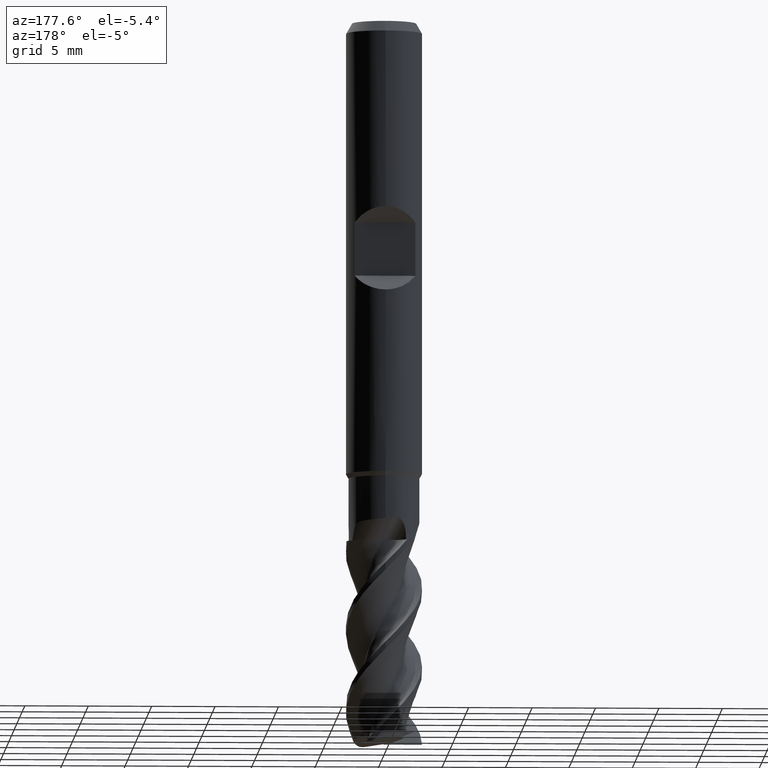
[diagram: clean part render]
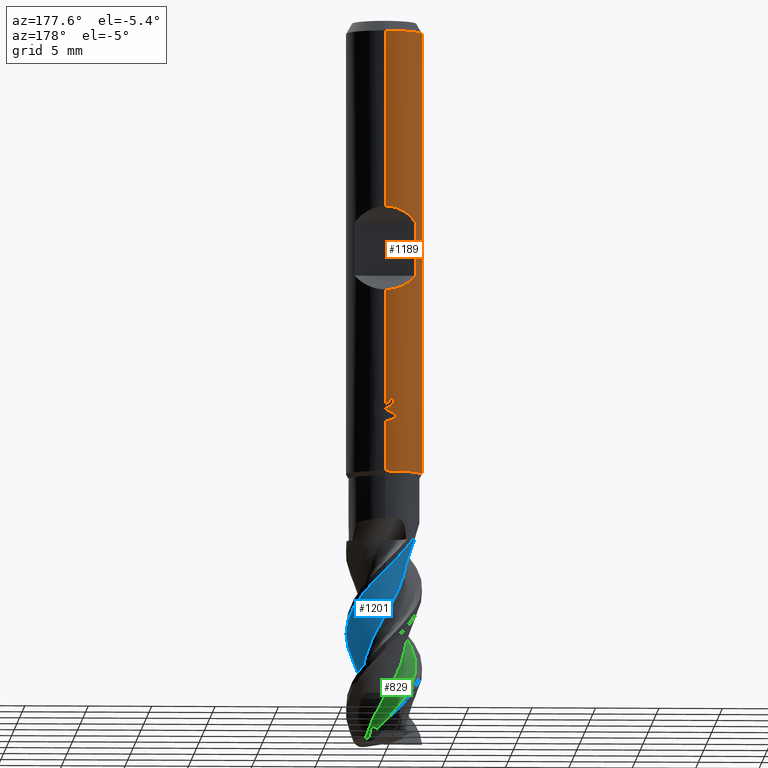
[diagram: same view with three faces highlighted in distinct colors, each labeled with its STEP entity id]
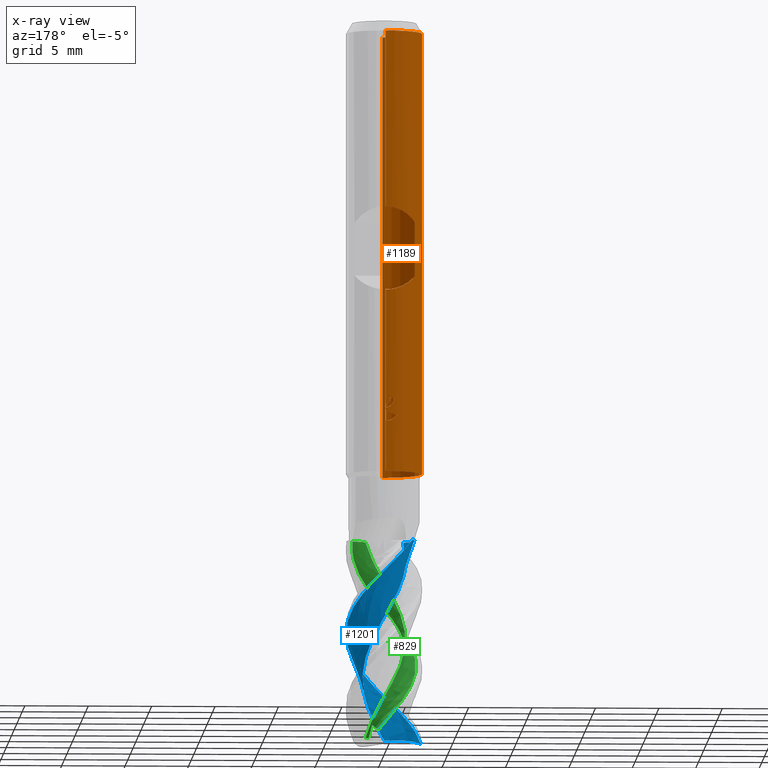
[diagram: x-ray of the same camera — body ghosted, the three highlighted faces saturated]
A machine part, auxiliary view with three faces highlighted in distinct colors.
The next image is the same camera in x-ray (body ghosted, the three faces saturated) — at least one of them is partly hidden behind the body in this view.
Their STEP definitions:

[orange] entity #1189 — the highlighted cylindrical surface (partial cylindrical patch) has radius 3 mm, axis along (-0, -0, 1).
#469=EDGE_CURVE('',#483,#699,#1337,.T.);
#483=VERTEX_POINT('',#1351);
#489=VERTEX_POINT('',#1357);
#501=VERTEX_POINT('',#1370);
#543=EDGE_CURVE('',#857,#501,#1417,.T.);
#549=EDGE_CURVE('',#597,#483,#1423,.T.);
#551=EDGE_CURVE('',#911,#889,#1425,.T.);
#597=VERTEX_POINT('',#1474);
#611=VERTEX_POINT('',#1488);
#699=VERTEX_POINT('',#1585);
#727=EDGE_CURVE('',#611,#923,#1618,.T.);
#779=EDGE_CURVE('',#889,#489,#1675,.T.);
#801=EDGE_CURVE('',#489,#1185,#1698,.T.);
#805=EDGE_CURVE('',#1185,#1007,#1703,.T.);
#831=EDGE_CURVE('',#699,#597,#1731,.T.);
#853=EDGE_CURVE('',#877,#857,#1756,.T.);
#857=VERTEX_POINT('',#1760);
#877=VERTEX_POINT('',#1783);
#889=VERTEX_POINT('',#1796);
#897=VERTEX_POINT('',#1804);
#909=EDGE_CURVE('',#897,#911,#1816,.T.);
#911=VERTEX_POINT('',#1818);
#923=VERTEX_POINT('',#1831);
#951=EDGE_CURVE('',#1131,#897,#1865,.T.);
#969=EDGE_CURVE('',#923,#877,#1883,.T.);
#1007=VERTEX_POINT('',#1923);
#1061=VERTEX_POINT('',#1982);
#1119=EDGE_CURVE('',#1061,#1007,#2044,.T.);
#1127=EDGE_CURVE('',#1061,#1131,#2053,.T.);
#1131=VERTEX_POINT('',#2058);
#1185=VERTEX_POINT('',#2116);
#1189=ADVANCED_FACE('',(#2120,#2121,#2122),#2123,.T.);
#1269=EDGE_CURVE('',#501,#611,#2210,.T.);
#1337=LINE('',#2335,#2336);
#1351=CARTESIAN_POINT('',(-0.0173204359070034,2.99995,-31.6749133845535));
#1357=CARTESIAN_POINT('',(-2.4,1.8,-20.1));
#1370=CARTESIAN_POINT('',(-0.690037436273679,2.9195630386311,-29.8655112759038));
#1417=CIRCLE('',#3568,3.0);
#1423=B_SPLINE_CURVE_WITH_KNOTS('',3,(#3577,#3578,#3579,#3580,#3581,#3582,#3583,#3584,#3585,#3586),.UNSPECIFIED.,.F.,.F.,(4,2,2,2,4),(3.71798730591323,4.13127027719931,4.54460961578536,4.95794895437141,5.3705231927639),.UNSPECIFIED.);
#1425=ELLIPSE('',#3589,4.24264068711928,3.0);
#1474=CARTESIAN_POINT('',(-0.891353646972585,2.86452241674396,-31.2354605734398));
#1488=CARTESIAN_POINT('',(-0.017320435906994,2.99995,-30.6517581803455));
#1585=CARTESIAN_POINT('',(-0.017320435906985,2.99995,-30.8045476553544));
#1618=LINE('',#4547,#4548);
#1675=LINE('',#5016,#5017);
#1698=ELLIPSE('',#5115,4.24264068711929,3.0);
#1703=LINE('',#5121,#5122);
#1731=ELLIPSE('',#5805,3.34478529612858,3.0);
#1756=B_SPLINE_CURVE_WITH_KNOTS('',3,(#5951,#5952,#5953,#5954,#5955,#5956,#5957,#5958,#5959,#5960,#5961,#5962,#5963,#5964,#5965,#5966,#5967,#5968,#5969,#5970,#5971,#5972,#5973,#5974,#5975,#5976,#5977),.UNSPECIFIED.,.F.,.F.,(4,2,3,2,2,2,2,2,2,2,2,2,4),(-0.361797878080094,-0.180898939040047,0.0,0.180898939040045,0.36179787808009,0.54316499674529,0.724532115410489,0.905110773244761,1.08568943107903,1.26650066090355,1.44731189072806,1.62812312055257,1.80893435037709),.UNSPECIFIED.);
#1760=CARTESIAN_POINT('',(-0.374883079288044,2.9764849532399,-29.8655112759038));
#1783=CARTESIAN_POINT('',(-0.324247225918621,2.98242581407888,-30.082948685318));
#1796=CARTESIAN_POINT('',(-2.4,1.8,-15.9));
#1804=CARTESIAN_POINT('',(0.0,3.0,-0.799999999999997));
#1816=LINE('',#6157,#6158);
#1818=CARTESIAN_POINT('',(-3.67381906146713E-016,3.0,-14.7));
#1831=CARTESIAN_POINT('',(-0.0173204359069785,2.99995,-30.332064236895));
#1865=CIRCLE('',#6497,3.0);
#1883=B_SPLINE_CURVE_WITH_KNOTS('',3,(#6593,#6594,#6595,#6596,#6597,#6598,#6599,#6600,#6601,#6602,#6603,#6604,#6605,#6606,#6607,#6608,#6609,#6610,#6611,#6612,#6613,#6614,#6615,#6616,#6617,#6618,#6619),.UNSPECIFIED.,.F.,.F.,(4,2,3,2,2,2,2,2,2,2,2,2,4),(-0.361797878080094,-0.180898939040047,0.0,0.180898939040045,0.36179787808009,0.54316499674529,0.724532115410489,0.905110773244761,1.08568943107903,1.26650066090355,1.44731189072806,1.62812312055257,1.80893435037709),.UNSPECIFIED.);
#1923=CARTESIAN_POINT('',(0.0,3.0,-35.654));
#1982=CARTESIAN_POINT('',(3.67381906146713E-016,-3.0,-35.654));
#2044=CIRCLE('',#7688,3.0);
#2053=LINE('',#8018,#8019);
#2058=CARTESIAN_POINT('',(3.67381906146713E-016,-3.0,-0.799999999999997));
#2116=CARTESIAN_POINT('',(-3.67381906146713E-016,3.0,-21.3));
#2120=FACE_OUTER_BOUND('',#8135,.T.);
#2121=FACE_BOUND('',#8136,.T.);
#2122=FACE_BOUND('',#8137,.T.);
#2123=CYLINDRICAL_SURFACE('',#8138,3.0);
#2210=B_SPLINE_CURVE_WITH_KNOTS('',3,(#9122,#9123,#9124,#9125,#9126,#9127,#9128,#9129,#9130,#9131,#9132,#9133,#9134,#9135),.UNSPECIFIED.,.F.,.F.,(4,2,2,2,2,2,4),(2.091097645352,2.38959558480883,2.68809352426566,2.98659146372249,3.28432857408576,3.58206568444902,3.88185771191666),.UNSPECIFIED.);
#2335=CARTESIAN_POINT('',(-0.017320435906985,2.99995,-30.6645073647412));
#2336=VECTOR('',#9909,1.0);
#3568=AXIS2_PLACEMENT_3D('',#9975,#9976,#9977);
#3577=CARTESIAN_POINT('',(-1.0213107725762,2.82080206782039,-31.0063603909889));
#3578=CARTESIAN_POINT('',(-0.965748326062896,2.84091920915678,-31.139858656383));
#3579=CARTESIAN_POINT('',(-0.882474008253194,2.86898278727423,-31.2610393018291));
#3580=CARTESIAN_POINT('',(-0.691181971660375,2.92097462682348,-31.4524209134462));
#3581=CARTESIAN_POINT('',(-0.569939118101215,2.94845792845378,-31.5358242986056));
#3582=CARTESIAN_POINT('',(-0.302738780934602,2.98773894197887,-31.6471051738375));
#3583=CARTESIAN_POINT('',(-0.156684840798735,2.99907204453492,-31.6749145449035));
#3584=CARTESIAN_POINT('',(0.118614216879022,3.00080717863586,-31.6749145449035));
#3585=CARTESIAN_POINT('',(0.264548965222022,2.99134988491468,-31.6471974310104));
#3586=CARTESIAN_POINT('',(0.398117192990064,2.97346644518577,-31.5916337934181));
#3589=AXIS2_PLACEMENT_3D('',#9979,#9980,#9981);
#4547=CARTESIAN_POINT('',(-0.017320435906985,2.99995,-30.6645073647412));
#4548=VECTOR('',#10203,1.0);
#5016=CARTESIAN_POINT('',(-2.4,1.8,-18.0));
#5017=VECTOR('',#10260,1.0);
#5115=AXIS2_PLACEMENT_3D('',#10275,#10276,#10277);
#5121=CARTESIAN_POINT('',(-3.67381906146713E-016,3.0,-18.227));
#5122=VECTOR('',#10286,1.0);
#5805=AXIS2_PLACEMENT_3D('',#10301,#10302,#10303);
#5951=CARTESIAN_POINT('',(0.443451175650266,2.96704416125113,-29.5298764058061));
#5952=CARTESIAN_POINT('',(0.485825230520439,2.96071098134951,-29.5723072631594));
#5953=CARTESIAN_POINT('',(0.522628634598451,2.95423041401874,-29.6260565977037));
#5954=CARTESIAN_POINT('',(0.571515479073374,2.94516350896329,-29.7440093998545));
#5955=CARTESIAN_POINT('',(0.58359092842081,2.94268952291351,-29.8082247886017));
#5956=CARTESIAN_POINT('',(0.58359092842081,2.94268952291351,-29.8685244349484));
#5957=CARTESIAN_POINT('',(0.58359092842081,2.94268952291351,-29.9288240812951));
#5958=CARTESIAN_POINT('',(0.571515479073372,2.94516350896329,-29.9930394700423));
#5959=CARTESIAN_POINT('',(0.522628634598447,2.95423041401874,-30.1109922721932));
#5960=CARTESIAN_POINT('',(0.485825230520438,2.96071098134951,-30.1647416067375));
#5961=CARTESIAN_POINT('',(0.400967453640912,2.97339373188344,-30.2497131355921));
#5962=CARTESIAN_POINT('',(0.347160591378599,2.98043595390805,-30.2866186343397));
#5963=CARTESIAN_POINT('',(0.229067490754342,2.99183004798448,-30.3356491335629));
#5964=CARTESIAN_POINT('',(0.164768311964613,2.99608182394725,-30.3477661750437));
#5965=CARTESIAN_POINT('',(0.0441927259273233,3.00027835150232,-30.3477661750437));
#5966=CARTESIAN_POINT('',(-0.0199849147074371,3.00051422459916,-30.3357432311485));
#5967=CARTESIAN_POINT('',(-0.138011899975599,2.99740516520178,-30.2868705536194));
#5968=CARTESIAN_POINT('',(-0.191865153226538,2.99416206152009,-30.2500238345305));
#5969=CARTESIAN_POINT('',(-0.276951356845971,2.9874941541864,-30.1650104084073));
#5970=CARTESIAN_POINT('',(-0.31385751762486,2.98363884435361,-30.1111404765947));
#5971=CARTESIAN_POINT('',(-0.362829872721119,2.97808021777493,-29.99303592618));
#5972=CARTESIAN_POINT('',(-0.374892551769671,2.97648376018208,-29.9287948448899));
#5973=CARTESIAN_POINT('',(-0.374892551769671,2.97648376018208,-29.8082540250069));
#5974=CARTESIAN_POINT('',(-0.362829872721119,2.97808021777493,-29.7440129437168));
#5975=CARTESIAN_POINT('',(-0.31385751762486,2.98363884435361,-29.6259083933022));
#5976=CARTESIAN_POINT('',(-0.276951356845971,2.9874941541864,-29.5720384614896));
#5977=CARTESIAN_POINT('',(-0.234380876478645,2.99083025341478,-29.5295043932883));
#6157=CARTESIAN_POINT('',(-3.67381906146713E-016,3.0,-18.227));
#6158=VECTOR('',#10401,1.0);
#6497=AXIS2_PLACEMENT_3D('',#10459,#10460,#10461);
#6593=CARTESIAN_POINT('',(0.443451175650266,2.96704416125113,-29.5298764058061));
#6594=CARTESIAN_POINT('',(0.485825230520439,2.96071098134951,-29.5723072631594));
#6595=CARTESIAN_POINT('',(0.522628634598451,2.95423041401874,-29.6260565977037));
#6596=CARTESIAN_POINT('',(0.571515479073374,2.94516350896329,-29.7440093998545));
#6597=CARTESIAN_POINT('',(0.58359092842081,2.94268952291351,-29.8082247886017));
#6598=CARTESIAN_POINT('',(0.58359092842081,2.94268952291351,-29.8685244349484));
#6599=CARTESIAN_POINT('',(0.58359092842081,2.94268952291351,-29.9288240812951));
#6600=CARTESIAN_POINT('',(0.571515479073372,2.94516350896329,-29.9930394700423));
#6601=CARTESIAN_POINT('',(0.522628634598447,2.95423041401874,-30.1109922721932));
#6602=CARTESIAN_POINT('',(0.485825230520438,2.96071098134951,-30.1647416067375));
#6603=CARTESIAN_POINT('',(0.400967453640912,2.97339373188344,-30.2497131355921));
#6604=CARTESIAN_POINT('',(0.347160591378599,2.98043595390805,-30.2866186343397));
#6605=CARTESIAN_POINT('',(0.229067490754342,2.99183004798448,-30.3356491335629));
#6606=CARTESIAN_POINT('',(0.164768311964613,2.99608182394725,-30.3477661750437));
#6607=CARTESIAN_POINT('',(0.0441927259273233,3.00027835150232,-30.3477661750437));
#6608=CARTESIAN_POINT('',(-0.0199849147074371,3.00051422459916,-30.3357432311485));
#6609=CARTESIAN_POINT('',(-0.138011899975599,2.99740516520178,-30.2868705536194));
#6610=CARTESIAN_POINT('',(-0.191865153226538,2.99416206152009,-30.2500238345305));
#6611=CARTESIAN_POINT('',(-0.276951356845971,2.9874941541864,-30.1650104084073));
#6612=CARTESIAN_POINT('',(-0.31385751762486,2.98363884435361,-30.1111404765947));
#6613=CARTESIAN_POINT('',(-0.362829872721119,2.97808021777493,-29.99303592618));
#6614=CARTESIAN_POINT('',(-0.374892551769671,2.97648376018208,-29.9287948448899));
#6615=CARTESIAN_POINT('',(-0.374892551769671,2.97648376018208,-29.8082540250069));
#6616=CARTESIAN_POINT('',(-0.362829872721119,2.97808021777493,-29.7440129437168));
#6617=CARTESIAN_POINT('',(-0.31385751762486,2.98363884435361,-29.6259083933022));
#6618=CARTESIAN_POINT('',(-0.276951356845971,2.9874941541864,-29.5720384614896));
#6619=CARTESIAN_POINT('',(-0.234380876478645,2.99083025341478,-29.5295043932883));
#7688=AXIS2_PLACEMENT_3D('',#10613,#10614,#10615);
#8018=CARTESIAN_POINT('',(3.67381906146713E-016,-3.0,-18.227));
#8019=VECTOR('',#10624,1.0);
#8135=EDGE_LOOP('',(#10682,#10683,#10684,#10685,#10686,#10687,#10688,#10689));
#8136=EDGE_LOOP('',(#10690,#10691,#10692));
#8137=EDGE_LOOP('',(#10693,#10694,#10695,#10696,#10697));
#8138=AXIS2_PLACEMENT_3D('',#10698,#10699,#10700);
#9122=CARTESIAN_POINT('',(-0.629727328037688,2.93316271153213,-29.5690913557644));
#9123=CARTESIAN_POINT('',(-0.670089755997728,2.92449721450026,-29.6662639601135));
#9124=CARTESIAN_POINT('',(-0.690061178540054,2.91955742705498,-29.7721316354559));
#9125=CARTESIAN_POINT('',(-0.690061178540054,2.91955742705498,-29.9711302617605));
#9126=CARTESIAN_POINT('',(-0.670089755997727,2.92449721450026,-30.0769979371029));
#9127=CARTESIAN_POINT('',(-0.589364900077661,2.94182820856402,-30.2713431458012));
#9128=CARTESIAN_POINT('',(-0.528629969212499,2.95390696563364,-30.3598560999866));
#9129=CARTESIAN_POINT('',(-0.388825924618277,2.97553438372319,-30.4994507471901));
#9130=CARTESIAN_POINT('',(-0.300374998568297,2.98650953771095,-30.5600152917628));
#9131=CARTESIAN_POINT('',(-0.10625246950245,2.99969577970094,-30.6404637231012));
#9132=CARTESIAN_POINT('',(-0.000555188223129263,3.0016411180253,-30.6603289843056));
#9133=CARTESIAN_POINT('',(0.198513504569518,2.99509240733468,-30.6603289843056));
#9134=CARTESIAN_POINT('',(0.304528894401636,2.98611319488251,-30.640217470731));
#9135=CARTESIAN_POINT('',(0.401676121348869,2.97298777218106,-30.5997873850085));
#9909=DIRECTION('',(-0.0,-0.0,1.0));
#9975=CARTESIAN_POINT('',(0.0,0.0,-29.8655112759038));
#9976=DIRECTION('',(0.0,-0.0,1.0));
#9977=DIRECTION('',(0.0,1.0,0.0));
#9979=CARTESIAN_POINT('',(0.0,0.0,-17.7));
#9980=DIRECTION('',(0.0,-0.707106781186547,0.707106781186548));
#9981=DIRECTION('',(0.0,0.707106781186548,0.707106781186547));
#10203=DIRECTION('',(-0.0,-0.0,1.0));
#10260=DIRECTION('',(0.0,0.0,-1.0));
#10275=CARTESIAN_POINT('',(0.0,0.0,-18.3));
#10276=DIRECTION('',(0.0,-0.707106781186548,-0.707106781186547));
#10277=DIRECTION('',(0.0,0.707106781186547,-0.707106781186548));
#10286=DIRECTION('',(0.0,0.0,-1.0));
#10301=CARTESIAN_POINT('',(0.0,0.0,-30.7960083922181));
#10302=DIRECTION('',(-0.442195774284071,0.0,0.896918556617774));
#10303=DIRECTION('',(0.896918556617774,-0.0,0.442195774284071));
#10401=DIRECTION('',(0.0,0.0,-1.0));
#10459=CARTESIAN_POINT('',(0.0,0.0,-0.799999999999997));
#10460=DIRECTION('',(0.0,0.0,-1.0));
#10461=DIRECTION('',(0.0,1.0,0.0));
#10613=CARTESIAN_POINT('',(0.0,0.0,-35.654));
#10614=DIRECTION('',(0.0,0.0,-1.0));
#10615=DIRECTION('',(0.0,1.0,0.0));
#10624=DIRECTION('',(-0.0,-0.0,1.0));
#10682=ORIENTED_EDGE('',*,*,#909,.T.);
#10683=ORIENTED_EDGE('',*,*,#551,.T.);
#10684=ORIENTED_EDGE('',*,*,#779,.T.);
#10685=ORIENTED_EDGE('',*,*,#801,.T.);
#10686=ORIENTED_EDGE('',*,*,#805,.T.);
#10687=ORIENTED_EDGE('',*,*,#1119,.F.);
#10688=ORIENTED_EDGE('',*,*,#1127,.T.);
#10689=ORIENTED_EDGE('',*,*,#951,.T.);
#10690=ORIENTED_EDGE('',*,*,#549,.T.);
#10691=ORIENTED_EDGE('',*,*,#469,.T.);
#10692=ORIENTED_EDGE('',*,*,#831,.T.);
#10693=ORIENTED_EDGE('',*,*,#969,.T.);
#10694=ORIENTED_EDGE('',*,*,#853,.T.);
#10695=ORIENTED_EDGE('',*,*,#543,.T.);
#10696=ORIENTED_EDGE('',*,*,#1269,.T.);
#10697=ORIENTED_EDGE('',*,*,#727,.T.);
#10698=CARTESIAN_POINT('',(0.0,0.0,-18.227));
#10699=DIRECTION('',(-0.0,-0.0,1.0));
#10700=DIRECTION('',(0.0,1.0,0.0));

[blue] entity #1201 — the highlighted face is a freeform B-spline surface patch.
#559=VERTEX_POINT('',#1434);
#579=EDGE_CURVE('',#989,#775,#1454,.T.);
#581=EDGE_CURVE('',#775,#657,#1456,.T.);
#623=EDGE_CURVE('',#559,#1255,#1500,.T.);
#657=VERTEX_POINT('',#1538);
#673=EDGE_CURVE('',#1073,#789,#1556,.T.);
#775=VERTEX_POINT('',#1671);
#789=VERTEX_POINT('',#1685);
#895=EDGE_CURVE('',#789,#989,#1802,.T.);
#989=VERTEX_POINT('',#1904);
#1073=VERTEX_POINT('',#1994);
#1101=EDGE_CURVE('',#657,#559,#2023,.T.);
#1141=EDGE_CURVE('',#1255,#1073,#2068,.T.);
#1201=ADVANCED_FACE('',(#2136),#2137,.T.);
#1255=VERTEX_POINT('',#2195);
#1434=CARTESIAN_POINT('',(-2.17403242104452,2.06711950362026,-41.0));
#1454=B_SPLINE_CURVE_WITH_KNOTS('',3,(#3693,#3694,#3695,#3696,#3697,#3698,#3699,#3700,#3701,#3702,#3703,#3704,#3705,#3706,#3707,#3708,#3709,#3710,#3711,#3712,#3713,#3714,#3715,#3716,#3717,#3718,#3719,#3720,#3721,#3722,#3723,#3724,#3725,#3726,#3727,#3728,#3729,#3730,#3731,#3732,#3733,#3734,#3735,#3736,#3737,#3738),.UNSPECIFIED.,.F.,.F.,(4,2,2,2,2,2,2,2,2,2,2,2,2,2,2,2,2,2,2,2,2,2,4),(0.0,1.18681361694995,2.08772655611556,2.87410597383963,3.44718154613084,4.20396921001839,4.66829276555194,5.19515355807053,5.63234324784134,5.92519413822104,6.34371903174553,6.5904570775178,6.90374749116451,7.21371028454425,7.46671414651133,7.61158679078796,7.91117285621419,8.13756746410269,8.35930397431864,8.55412163387601,8.85594991416374,9.00912371694479,9.15671389123807),.UNSPECIFIED.);
#1456=B_SPLINE_CURVE_WITH_KNOTS('',3,(#3741,#3742,#3743,#3744,#3745,#3746,#3747,#3748,#3749,#3750,#3751,#3752,#3753,#3754,#3755,#3756,#3757,#3758,#3759,#3760,#3761,#3762,#3763,#3764,#3765,#3766,#3767,#3768,#3769,#3770,#3771,#3772,#3773,#3774,#3775,#3776,#3777,#3778,#3779,#3780,#3781,#3782,#3783,#3784,#3785,#3786),.UNSPECIFIED.,.F.,.F.,(4,2,2,2,2,2,2,2,2,2,2,2,2,2,2,2,2,2,2,2,2,2,4),(0.0,1.18681361694995,2.08772655611556,2.87410597383963,3.44718154613084,4.20396921001839,4.66829276555194,5.19515355807053,5.63234324784134,5.92519413822104,6.34371903174553,6.5904570775178,6.90374749116451,7.21371028454425,7.46671414651133,7.61158679078796,7.91117285621419,8.13756746410269,8.35930397431864,8.55412163387601,8.85594991416374,9.00912371694479,9.15671389123807),.UNSPECIFIED.);
#1500=B_SPLINE_CURVE_WITH_KNOTS('',3,(#3946,#3947,#3948,#3949,#3950,#3951,#3952,#3953,#3954,#3955),.UNSPECIFIED.,.F.,.F.,(4,2,2,2,4),(0.0,0.968956974418605,1.93785951899853,2.66573546633078,3.3935929669296),.UNSPECIFIED.);
#1538=CARTESIAN_POINT('',(-4.52354573502663E-010,2.9999152455222,-43.4392835523956));
#1556=B_SPLINE_CURVE_WITH_KNOTS('',3,(#4309,#4310,#4311,#4312,#4313,#4314,#4315,#4316,#4317,#4318,#4319,#4320,#4321,#4322,#4323,#4324,#4325,#4326,#4327,#4328,#4329,#4330,#4331,#4332,#4333,#4334,#4335,#4336,#4337,#4338,#4339,#4340,#4341,#4342,#4343,#4344,#4345,#4346,#4347,#4348,#4349,#4350,#4351,#4352,#4353,#4354,#4355,#4356,#4357,#4358,#4359,#4360,#4361,#4362,#4363,#4364,#4365,#4366,#4367,#4368,#4369,#4370,#4371,#4372,#4373,#4374),.UNSPECIFIED.,.F.,.F.,(4,2,2,2,2,2,2,2,2,2,2,2,2,2,2,2,2,2,2,2,2,2,2,2,2,2,2,2,2,2,2,2,4),(0.0,0.9262260142768,1.30960830004345,1.88561255096027,2.79240717205646,3.03333183550199,3.56554743592074,3.95874825569041,4.4428478616099,4.71221964345733,5.10764171643154,5.71016601103923,5.89568310926676,6.14751083836152,6.57101162843072,7.27217360794515,7.51633529899932,7.93101074394554,8.56970340503698,8.81711922016375,9.19964122208486,9.76966870381691,9.92874162094933,10.2765951264929,10.4058094280253,10.7913938293769,10.8946207954893,11.0431635095461,11.3086594337867,11.7233474343922,11.8814662708925,12.1468229538797,12.5206017929905),.UNSPECIFIED.);
#1671=CARTESIAN_POINT('',(6.33364937066491E-013,-2.99997407951669,-52.8527226704952));
#1685=CARTESIAN_POINT('',(-0.0919701630796661,-1.69322594019674,-56.5825370332332));
#1802=B_SPLINE_CURVE_WITH_KNOTS('',3,(#6125,#6126,#6127,#6128,#6129,#6130,#6131,#6132,#6133,#6134,#6135,#6136),.UNSPECIFIED.,.F.,.F.,(4,2,2,2,2,4),(0.0,0.890137715427325,1.7210393079815,2.60006189520892,3.09509789191935,3.62746953586187),.UNSPECIFIED.);
#1904=CARTESIAN_POINT('',(-2.93030579887033,-0.642888068076976,-56.9238124955848));
#1994=CARTESIAN_POINT('',(-1.54227719259406,-0.704587811030029,-41.0));
#2023=B_SPLINE_CURVE_WITH_KNOTS('',3,(#7602,#7603,#7604,#7605,#7606,#7607,#7608,#7609,#7610,#7611,#7612,#7613,#7614,#7615,#7616,#7617,#7618,#7619,#7620,#7621,#7622,#7623,#7624,#7625,#7626,#7627,#7628,#7629,#7630,#7631,#7632,#7633,#7634,#7635,#7636,#7637,#7638,#7639,#7640,#7641,#7642,#7643,#7644,#7645,#7646,#7647),.UNSPECIFIED.,.F.,.F.,(4,2,2,2,2,2,2,2,2,2,2,2,2,2,2,2,2,2,2,2,2,2,4),(0.0,1.18681361694995,2.08772655611556,2.87410597383963,3.44718154613084,4.20396921001839,4.66829276555194,5.19515355807053,5.63234324784134,5.92519413822104,6.34371903174553,6.5904570775178,6.90374749116451,7.21371028454425,7.46671414651133,7.61158679078796,7.91117285621419,8.13756746410269,8.35930397431864,8.55412163387601,8.85594991416374,9.00912371694479,9.15671389123807),.UNSPECIFIED.);
#2068=B_SPLINE_CURVE_WITH_KNOTS('',3,(#8049,#8050,#8051,#8052,#8053,#8054,#8055,#8056,#8057,#8058),.UNSPECIFIED.,.F.,.F.,(4,2,2,2,4),(0.0,0.968956974418605,1.93785951899853,2.66573546633078,3.3935929669296),.UNSPECIFIED.);
#2136=FACE_OUTER_BOUND('',#8155,.T.);
#2137=B_SPLINE_SURFACE_WITH_KNOTS('',3,3,((#8156,#8157,#8158,#8159,#8160,#8161,#8162,#8163,#8164,#8165,#8166,#8167,#8168,#8169,#8170,#8171,#8172,#8173,#8174,#8175,#8176,#8177,#8178,#8179,#8180,#8181,#8182,#8183,#8184,#8185,#8186,#8187,#8188,#8189,#8190,#8191,#8192,#8193,#8194,#8195,#8196,#8197,#8198,#8199,#8200,#8201,#8202,#8203,#8204,#8205,#8206,#8207,#8208),(#8209,#8210,#8211,#8212,#8213,#8214,#8215,#8216,#8217,#8218,#8219,#8220,#8221,#8222,#8223,#8224,#8225,#8226,#8227,#8228,#8229,#8230,#8231,#8232,#8233,#8234,#8235,#8236,#8237,#8238,#8239,#8240,#8241,#8242,#8243,#8244,#8245,#8246,#8247,#8248,#8249,#8250,#8251,#8252,#8253,#8254,#8255,#8256,#8257,#8258,#8259,#8260,#8261),(#8262,#8263,#8264,#8265,#8266,#8267,#8268,#8269,#8270,#8271,#8272,#8273,#8274,#8275,#8276,#8277,#8278,#8279,#8280,#8281,#8282,#8283,#8284,#8285,#8286,#8287,#8288,#8289,#8290,#8291,#8292,#8293,#8294,#8295,#8296,#8297,#8298,#8299,#8300,#8301,#8302,#8303,#8304,#8305,#8306,#8307,#8308,#8309,#8310,#8311,#8312,#8313,#8314),(#8315,#8316,#8317,#8318,#8319,#8320,#8321,#8322,#8323,#8324,#8325,#8326,#8327,#8328,#8329,#8330,#8331,#8332,#8333,#8334,#8335,#8336,#8337,#8338,#8339,#8340,#8341,#8342,#8343,#8344,#8345,#8346,#8347,#8348,#8349,#8350,#8351,#8352,#8353,#8354,#8355,#8356,#8357,#8358,#8359,#8360,#8361,#8362,#8363,#8364,#8365,#8366,#8367),(#8368,#8369,#8370,#8371,#8372,#8373,#8374,#8375,#8376,#8377,#8378,#8379,#8380,#8381,#8382,#8383,#8384,#8385,#8386,#8387,#8388,#8389,#8390,#8391,#8392,#8393,#8394,#8395,#8396,#8397,#8398,#8399,#8400,#8401,#8402,#8403,#8404,#8405,#8406,#8407,#8408,#8409,#8410,#8411,#8412,#8413,#8414,#8415,#8416,#8417,#8418,#8419,#8420),(#8421,#8422,#8423,#8424,#8425,#8426,#8427,#8428,#8429,#8430,#8431,#8432,#8433,#8434,#8435,#8436,#8437,#8438,#8439,#8440,#8441,#8442,#8443,#8444,#8445,#8446,#8447,#8448,#8449,#8450,#8451,#8452,#8453,#8454,#8455,#8456,#8457,#8458,#8459,#8460,#8461,#8462,#8463,#8464,#8465,#8466,#8467,#8468,#8469,#8470,#8471,#8472,#8473),(#8474,#8475,#8476,#8477,#8478,#8479,#8480,#8481,#8482,#8483,#8484,#8485,#8486,#8487,#8488,#8489,#8490,#8491,#8492,#8493,#8494,#8495,#8496,#8497,#8498,#8499,#8500,#8501,#8502,#8503,#8504,#8505,#8506,#8507,#8508,#8509,#8510,#8511,#8512,#8513,#8514,#8515,#8516,#8517,#8518,#8519,#8520,#8521,#8522,#8523,#8524,#8525,#8526)),.UNSPECIFIED.,.F.,.F.,.F.,(4,1,1,1,4),(4,1,2,1,2,1,2,1,2,1,2,1,2,1,2,1,2,1,2,1,2,1,2,1,2,1,2,1,2,1,2,1,2,1,4),(-1.37901021714438,-1.03425766285828,-0.68950510857219,-0.344752554286095,0.0),(0.0,0.439675299220016,0.879350598440031,1.31902589766005,1.75870119688006,2.63805179532009,3.51740239376013,4.39675299220016,5.27610359064019,6.15545418908022,7.03480478752025,7.91415538596028,8.79350598440031,9.67285658284034,10.5522071812804,11.4315577797204,12.3109083781604,13.1902589766005,14.0696095750405,14.9489601734805,15.8283107719206,16.7076613703606,17.5870119688006,18.4663625672407,19.3457131656807,20.2250637641207,21.1044143625608,21.9837649610008,22.8631155594408,23.7424661578808,24.6218167563209,25.5011673547609,26.3805179532009,27.259868551641,28.139219150081),.UNSPECIFIED.);
#2195=CARTESIAN_POINT('',(-1.83276386004797,-0.39162807638119,-41.0));
#3693=CARTESIAN_POINT('',(-2.94546034662865,-0.569441258110277,-57.0));
#3694=CARTESIAN_POINT('',(-2.89276610041437,-0.841995320156419,-56.7181479981582));
#3695=CARTESIAN_POINT('',(-2.80201801695677,-1.10834792161556,-56.433246427339));
#3696=CARTESIAN_POINT('',(-2.57678329115923,-1.55116397464949,-55.9447801687419));
#3697=CARTESIAN_POINT('',(-2.43419070795151,-1.78175516061838,-55.684484975343));
#3698=CARTESIAN_POINT('',(-2.03623646866513,-2.22032610900635,-55.0842145075145));
#3699=CARTESIAN_POINT('',(-1.82238126564533,-2.39931786489202,-54.8003635196225));
#3700=CARTESIAN_POINT('',(-1.41280952844724,-2.65428529210644,-54.3212741805445));
#3701=CARTESIAN_POINT('',(-1.23218075679658,-2.74282838597384,-54.1300378191895));
#3702=CARTESIAN_POINT('',(-0.788908809266265,-2.90686137509275,-53.6593079215643));
#3703=CARTESIAN_POINT('',(-0.526415030672838,-2.96542809747306,-53.385636412945));
#3704=CARTESIAN_POINT('',(-0.0980652837357827,-3.0028258334066,-52.9501346881949));
#3705=CARTESIAN_POINT('',(0.0670531387575729,-3.00382937783682,-52.7849554891276));
#3706=CARTESIAN_POINT('',(0.420912693751318,-2.97628203304017,-52.4371283950654));
#3707=CARTESIAN_POINT('',(0.692269261335181,-2.93794674672186,-52.1736829603784));
#3708=CARTESIAN_POINT('',(1.26646061345466,-2.73354520033104,-51.5556198409975));
#3709=CARTESIAN_POINT('',(1.51448381725538,-2.60469982379578,-51.2714612696952));
#3710=CARTESIAN_POINT('',(1.89494884985508,-2.33325659967122,-50.808423145374));
#3711=CARTESIAN_POINT('',(2.03515036992576,-2.2120669835172,-50.6319086295066));
#3712=CARTESIAN_POINT('',(2.35111507581452,-1.88258685225091,-50.1777622965247));
#3713=CARTESIAN_POINT('',(2.50918465734228,-1.66565007536567,-49.9047216157398));
#3714=CARTESIAN_POINT('',(2.7108884403851,-1.2943576268653,-49.4764428723658));
#3715=CARTESIAN_POINT('',(2.77536160376454,-1.14995820104428,-49.3179310973812));
#3716=CARTESIAN_POINT('',(2.89574999621966,-0.809418405458059,-48.9626638678836));
#3717=CARTESIAN_POINT('',(2.96016178214178,-0.567120508906699,-48.7225346548875));
#3718=CARTESIAN_POINT('',(3.01368562664476,0.00866618723011187,-48.1381196709243));
#3719=CARTESIAN_POINT('',(2.99909862143937,0.298550841173649,-47.8424124090022));
#3720=CARTESIAN_POINT('',(2.89676077590557,0.815122292364176,-47.3182029046427));
#3721=CARTESIAN_POINT('',(2.8245280523876,1.03819696805011,-47.0957765316319));
#3722=CARTESIAN_POINT('',(2.66876794699571,1.37684919458885,-46.7226861239343));
#3723=CARTESIAN_POINT('',(2.60398687389124,1.49565491218287,-46.5857287213661));
#3724=CARTESIAN_POINT('',(2.38244012435099,1.84419830189285,-46.1657393802507));
#3725=CARTESIAN_POINT('',(2.19951334255838,2.05973876039564,-45.8799963066297));
#3726=CARTESIAN_POINT('',(1.82554560818676,2.39020714074032,-45.3918984028843));
#3727=CARTESIAN_POINT('',(1.62732827781826,2.53587501803717,-45.1537160886975));
#3728=CARTESIAN_POINT('',(1.13210819447752,2.79176279417552,-44.5890530950216));
#3729=CARTESIAN_POINT('',(0.869459268373808,2.88465651861534,-44.3055363558616));
#3730=CARTESIAN_POINT('',(0.35632412117099,2.98872894060033,-43.7853381871501));
#3731=CARTESIAN_POINT('',(0.114215488551698,3.00778115934936,-43.5547043376594));
#3732=CARTESIAN_POINT('',(-0.511174190727399,2.98041993662932,-42.9261965034751));
#3733=CARTESIAN_POINT('',(-0.88689606031533,2.89155177784714,-42.5324946809323));
#3734=CARTESIAN_POINT('',(-1.41554158819699,2.6521398183948,-41.9621020330984));
#3735=CARTESIAN_POINT('',(-1.58408828615015,2.55523560218608,-41.7754765224671));
#3736=CARTESIAN_POINT('',(-1.9000515220731,2.32928166577312,-41.3858994149118));
#3737=CARTESIAN_POINT('',(-2.04362491563985,2.20427352462282,-41.1923859874912));
#3738=CARTESIAN_POINT('',(-2.17403242104451,2.06711950362028,-41.0));
#3741=CARTESIAN_POINT('',(-2.94546034662865,-0.569441258110277,-57.0));
#3742=CARTESIAN_POINT('',(-2.89276610041437,-0.841995320156419,-56.7181479981582));
#3743=CARTESIAN_POINT('',(-2.80201801695677,-1.10834792161556,-56.433246427339));
#3744=CARTESIAN_POINT('',(-2.57678329115923,-1.55116397464949,-55.9447801687419));
#3745=CARTESIAN_POINT('',(-2.43419070795151,-1.78175516061838,-55.684484975343));
#3746=CARTESIAN_POINT('',(-2.03623646866513,-2.22032610900635,-55.0842145075145));
#3747=CARTESIAN_POINT('',(-1.82238126564533,-2.39931786489202,-54.8003635196225));
#3748=CARTESIAN_POINT('',(-1.41280952844724,-2.65428529210644,-54.3212741805445));
#3749=CARTESIAN_POINT('',(-1.23218075679658,-2.74282838597384,-54.1300378191895));
#3750=CARTESIAN_POINT('',(-0.788908809266265,-2.90686137509275,-53.6593079215643));
#3751=CARTESIAN_POINT('',(-0.526415030672838,-2.96542809747306,-53.385636412945));
#3752=CARTESIAN_POINT('',(-0.0980652837357827,-3.0028258334066,-52.9501346881949));
#3753=CARTESIAN_POINT('',(0.0670531387575729,-3.00382937783682,-52.7849554891276));
#3754=CARTESIAN_POINT('',(0.420912693751318,-2.97628203304017,-52.4371283950654));
#3755=CARTESIAN_POINT('',(0.692269261335181,-2.93794674672186,-52.1736829603784));
#3756=CARTESIAN_POINT('',(1.26646061345466,-2.73354520033104,-51.5556198409975));
#3757=CARTESIAN_POINT('',(1.51448381725538,-2.60469982379578,-51.2714612696952));
#3758=CARTESIAN_POINT('',(1.89494884985508,-2.33325659967122,-50.808423145374));
#3759=CARTESIAN_POINT('',(2.03515036992576,-2.2120669835172,-50.6319086295066));
#3760=CARTESIAN_POINT('',(2.35111507581452,-1.88258685225091,-50.1777622965247));
#3761=CARTESIAN_POINT('',(2.50918465734228,-1.66565007536567,-49.9047216157398));
#3762=CARTESIAN_POINT('',(2.7108884403851,-1.2943576268653,-49.4764428723658));
#3763=CARTESIAN_POINT('',(2.77536160376454,-1.14995820104428,-49.3179310973812));
#3764=CARTESIAN_POINT('',(2.89574999621966,-0.809418405458059,-48.9626638678836));
#3765=CARTESIAN_POINT('',(2.96016178214178,-0.567120508906699,-48.7225346548875));
#3766=CARTESIAN_POINT('',(3.01368562664476,0.00866618723011187,-48.1381196709243));
#3767=CARTESIAN_POINT('',(2.99909862143937,0.298550841173649,-47.8424124090022));
#3768=CARTESIAN_POINT('',(2.89676077590557,0.815122292364176,-47.3182029046427));
#3769=CARTESIAN_POINT('',(2.8245280523876,1.03819696805011,-47.0957765316319));
#3770=CARTESIAN_POINT('',(2.66876794699571,1.37684919458885,-46.7226861239343));
#3771=CARTESIAN_POINT('',(2.60398687389124,1.49565491218287,-46.5857287213661));
#3772=CARTESIAN_POINT('',(2.38244012435099,1.84419830189285,-46.1657393802507));
#3773=CARTESIAN_POINT('',(2.19951334255838,2.05973876039564,-45.8799963066297));
#3774=CARTESIAN_POINT('',(1.82554560818676,2.39020714074032,-45.3918984028843));
#3775=CARTESIAN_POINT('',(1.62732827781826,2.53587501803717,-45.1537160886975));
#3776=CARTESIAN_POINT('',(1.13210819447752,2.79176279417552,-44.5890530950216));
#3777=CARTESIAN_POINT('',(0.869459268373808,2.88465651861534,-44.3055363558616));
#3778=CARTESIAN_POINT('',(0.35632412117099,2.98872894060033,-43.7853381871501));
#3779=CARTESIAN_POINT('',(0.114215488551698,3.00778115934936,-43.5547043376594));
#3780=CARTESIAN_POINT('',(-0.511174190727399,2.98041993662932,-42.9261965034751));
#3781=CARTESIAN_POINT('',(-0.88689606031533,2.89155177784714,-42.5324946809323));
#3782=CARTESIAN_POINT('',(-1.41554158819699,2.6521398183948,-41.9621020330984));
#3783=CARTESIAN_POINT('',(-1.58408828615015,2.55523560218608,-41.7754765224671));
#3784=CARTESIAN_POINT('',(-1.9000515220731,2.32928166577312,-41.3858994149118));
#3785=CARTESIAN_POINT('',(-2.04362491563985,2.20427352462282,-41.1923859874912));
#3786=CARTESIAN_POINT('',(-2.17403242104451,2.06711950362028,-41.0));
#3946=CARTESIAN_POINT('',(-2.02456390204186,2.37279323810092,-41.0));
#3947=CARTESIAN_POINT('',(-2.18601120859696,2.09305317559659,-41.0));
#3948=CARTESIAN_POINT('',(-2.29127643472718,1.78445416998482,-41.0));
#3949=CARTESIAN_POINT('',(-2.3775844083014,1.14429341111561,-41.0));
#3950=CARTESIAN_POINT('',(-2.35780877573128,0.818854300064125,-41.0));
#3951=CARTESIAN_POINT('',(-2.21492087528387,0.271608849290476,-41.0));
#3952=CARTESIAN_POINT('',(-2.11950949664451,0.0471139259420989,-41.0));
#3953=CARTESIAN_POINT('',(-1.86656328642119,-0.366987432645108,-41.0));
#3954=CARTESIAN_POINT('',(-1.71039368436137,-0.554362318462456,-41.0));
#3955=CARTESIAN_POINT('',(-1.52952259242379,-0.716070749619831,-41.0));
#4309=CARTESIAN_POINT('',(-1.54227363017725,-0.704595647243732,-40.999984383119));
#4310=CARTESIAN_POINT('',(-1.60395305597424,-0.568920934482943,-41.2703723382006));
#4311=CARTESIAN_POINT('',(-1.64860466216172,-0.422790956334269,-41.5483445874675));
#4312=CARTESIAN_POINT('',(-1.68382970694209,-0.206343194745157,-41.9278992596564));
#4313=CARTESIAN_POINT('',(-1.6904193563028,-0.14570029359713,-42.0291213304904));
#4314=CARTESIAN_POINT('',(-1.69850818275383,0.0138632063632113,-42.303463458634));
#4315=CARTESIAN_POINT('',(-1.69491189630534,0.107845116714544,-42.4702079027463));
#4316=CARTESIAN_POINT('',(-1.6666602393386,0.343552954876733,-42.8987149013706));
#4317=CARTESIAN_POINT('',(-1.63053284443723,0.486178550322344,-43.1678034685994));
#4318=CARTESIAN_POINT('',(-1.56159316589273,0.660446765112824,-43.4979259774986));
#4319=CARTESIAN_POINT('',(-1.54573813015698,0.696901215134599,-43.5670826589432));
#4320=CARTESIAN_POINT('',(-1.49025556266164,0.813253139236074,-43.7879703600159));
#4321=CARTESIAN_POINT('',(-1.43956632920462,0.905263442774916,-43.9628274881566));
#4322=CARTESIAN_POINT('',(-1.30890297526431,1.08220568069437,-44.3540859320812));
#4323=CARTESIAN_POINT('',(-1.24765595871949,1.15185670455147,-44.5224636868039));
#4324=CARTESIAN_POINT('',(-1.10050688808696,1.29429957443509,-44.8946721128019));
#4325=CARTESIAN_POINT('',(-1.01003503444336,1.3661765942263,-45.1027900697245));
#4326=CARTESIAN_POINT('',(-0.856006532749155,1.46465822442508,-45.4196766191));
#4327=CARTESIAN_POINT('',(-0.802139889466165,1.49511774823706,-45.5224136059992));
#4328=CARTESIAN_POINT('',(-0.659092796965776,1.56540495868225,-45.7959051151117));
#4329=CARTESIAN_POINT('',(-0.572398446557255,1.59891558059781,-45.9605440650305));
#4330=CARTESIAN_POINT('',(-0.351903693029222,1.66440495289268,-46.3754887385676));
#4331=CARTESIAN_POINT('',(-0.213504108762519,1.68746707005727,-46.6321583570108));
#4332=CARTESIAN_POINT('',(-0.0293570099061701,1.69533978855137,-46.9585111229794));
#4333=CARTESIAN_POINT('',(0.0145184003566083,1.69558891694154,-47.0352047327701));
#4334=CARTESIAN_POINT('',(0.119039351799443,1.69216961897681,-47.2150553804876));
#4335=CARTESIAN_POINT('',(0.17768613752978,1.68734353349369,-47.3127376135355));
#4336=CARTESIAN_POINT('',(0.341742001171641,1.66433781246263,-47.5984202672191));
#4337=CARTESIAN_POINT('',(0.440829275325383,1.64055304226385,-47.7801431227443));
#4338=CARTESIAN_POINT('',(0.692311618701237,1.55636226474079,-48.2605464856419));
#4339=CARTESIAN_POINT('',(0.844265652866487,1.47970393631019,-48.5705392506453));
#4340=CARTESIAN_POINT('',(1.03439120341618,1.34450300915922,-48.9713841961708));
#4341=CARTESIAN_POINT('',(1.07950123505867,1.30898579925406,-49.0666516139537));
#4342=CARTESIAN_POINT('',(1.20503370230951,1.19793587216574,-49.3558604688967));
#4343=CARTESIAN_POINT('',(1.27548006026786,1.12213393601314,-49.5405784457977));
#4344=CARTESIAN_POINT('',(1.43341325947814,0.91865478907499,-50.007408243859));
#4345=CARTESIAN_POINT('',(1.51354439211343,0.779857400252196,-50.29925208787));
#4346=CARTESIAN_POINT('',(1.5976352700236,0.570393786675952,-50.6891741126326));
#4347=CARTESIAN_POINT('',(1.61716564595755,0.513345101330008,-50.7892031304334));
#4348=CARTESIAN_POINT('',(1.6604950179821,0.358165958501195,-51.0662328479769));
#4349=CARTESIAN_POINT('',(1.67782364368594,0.263807500089805,-51.2366116153949));
#4350=CARTESIAN_POINT('',(1.70098118643858,0.0307369792645656,-51.6598638179708));
#4351=CARTESIAN_POINT('',(1.69740248506211,-0.111263457058089,-51.9194911806684));
#4352=CARTESIAN_POINT('',(1.67016755180849,-0.292112156463038,-52.2419374774054));
#4353=CARTESIAN_POINT('',(1.66280929987958,-0.331759763498485,-52.3121469917483));
#4354=CARTESIAN_POINT('',(1.63463239120865,-0.458524695091214,-52.5348222010263));
#4355=CARTESIAN_POINT('',(1.60578262097855,-0.559784458756985,-52.7099589321202));
#4356=CARTESIAN_POINT('',(1.53644167421704,-0.719203720740766,-53.0191135837352));
#4357=CARTESIAN_POINT('',(1.51596561493717,-0.761257870795496,-53.1032070942047));
#4358=CARTESIAN_POINT('',(1.42814596374958,-0.92417490541995,-53.4381086388181));
#4359=CARTESIAN_POINT('',(1.34670298918477,-1.03902355095984,-53.6950807273517));
#4360=CARTESIAN_POINT('',(1.22530065429642,-1.17189403270704,-54.0114181004799));
#4361=CARTESIAN_POINT('',(1.19849495652205,-1.19938819612418,-54.0780799627476));
#4362=CARTESIAN_POINT('',(1.13021278474465,-1.26488398469804,-54.2399343614053));
#4363=CARTESIAN_POINT('',(1.09005403826966,-1.30007929054823,-54.3286971610684));
#4364=CARTESIAN_POINT('',(0.961787411643373,-1.40070162197724,-54.6101706253732));
#4365=CARTESIAN_POINT('',(0.875359398358707,-1.45589612402957,-54.7933022858809));
#4366=CARTESIAN_POINT('',(0.647035697227052,-1.57486396997105,-55.2601434475419));
#4367=CARTESIAN_POINT('',(0.495314801837796,-1.6290802957134,-55.5537743851138));
#4368=CARTESIAN_POINT('',(0.273897772742573,-1.67410885734338,-55.944137128385));
#4369=CARTESIAN_POINT('',(0.21468119379409,-1.68301502583283,-56.0435831547571));
#4370=CARTESIAN_POINT('',(0.047075559007762,-1.69847533272821,-56.3332413051342));
#4371=CARTESIAN_POINT('',(-0.0563656373764828,-1.69788544619695,-56.5173316427163));
#4372=CARTESIAN_POINT('',(-0.29940137678915,-1.67485632675657,-56.9588553332159));
#4373=CARTESIAN_POINT('',(-0.441225119663502,-1.64311035865159,-57.2235301842239));
#4374=CARTESIAN_POINT('',(-0.579176522675191,-1.5930660218771,-57.4802740923784));
#6125=CARTESIAN_POINT('',(-0.0762770483008731,-1.68693108384692,-56.5845823560468));
#6126=CARTESIAN_POINT('',(-0.349264147197891,-1.79750094103973,-56.5486560316352));
#6127=CARTESIAN_POINT('',(-0.639700284344855,-1.85926827054789,-56.5285866095396));
#6128=CARTESIAN_POINT('',(-1.21245286960013,-1.86487947617742,-56.526763418311));
#6129=CARTESIAN_POINT('',(-1.4844725530613,-1.81610027646223,-56.5426127412122));
#6130=CARTESIAN_POINT('',(-2.01173577470918,-1.61300587536265,-56.6086021123241));
#6131=CARTESIAN_POINT('',(-2.25545094797776,-1.45650931935302,-56.659450925759));
#6132=CARTESIAN_POINT('',(-2.58006115100522,-1.14976231418705,-56.7591190694979));
#6133=CARTESIAN_POINT('',(-2.68438554472297,-1.02777954083784,-56.7987536751727));
#6134=CARTESIAN_POINT('',(-2.87343386606265,-0.756434930009672,-56.8869188836975));
#6135=CARTESIAN_POINT('',(-2.95566807740046,-0.606317082655165,-56.935695129059));
#6136=CARTESIAN_POINT('',(-3.02207060644233,-0.449853533024382,-56.9865332180766));
#7602=CARTESIAN_POINT('',(-2.94546034662865,-0.569441258110277,-57.0));
#7603=CARTESIAN_POINT('',(-2.89276610041437,-0.841995320156419,-56.7181479981582));
#7604=CARTESIAN_POINT('',(-2.80201801695677,-1.10834792161556,-56.433246427339));
#7605=CARTESIAN_POINT('',(-2.57678329115923,-1.55116397464949,-55.9447801687419));
#7606=CARTESIAN_POINT('',(-2.43419070795151,-1.78175516061838,-55.684484975343));
#7607=CARTESIAN_POINT('',(-2.03623646866513,-2.22032610900635,-55.0842145075145));
#7608=CARTESIAN_POINT('',(-1.82238126564533,-2.39931786489202,-54.8003635196225));
#7609=CARTESIAN_POINT('',(-1.41280952844724,-2.65428529210644,-54.3212741805445));
#7610=CARTESIAN_POINT('',(-1.23218075679658,-2.74282838597384,-54.1300378191895));
#7611=CARTESIAN_POINT('',(-0.788908809266265,-2.90686137509275,-53.6593079215643));
#7612=CARTESIAN_POINT('',(-0.526415030672838,-2.96542809747306,-53.385636412945));
#7613=CARTESIAN_POINT('',(-0.0980652837357827,-3.0028258334066,-52.9501346881949));
#7614=CARTESIAN_POINT('',(0.0670531387575729,-3.00382937783682,-52.7849554891276));
#7615=CARTESIAN_POINT('',(0.420912693751318,-2.97628203304017,-52.4371283950654));
#7616=CARTESIAN_POINT('',(0.692269261335181,-2.93794674672186,-52.1736829603784));
#7617=CARTESIAN_POINT('',(1.26646061345466,-2.73354520033104,-51.5556198409975));
#7618=CARTESIAN_POINT('',(1.51448381725538,-2.60469982379578,-51.2714612696952));
#7619=CARTESIAN_POINT('',(1.89494884985508,-2.33325659967122,-50.808423145374));
#7620=CARTESIAN_POINT('',(2.03515036992576,-2.2120669835172,-50.6319086295066));
#7621=CARTESIAN_POINT('',(2.35111507581452,-1.88258685225091,-50.1777622965247));
#7622=CARTESIAN_POINT('',(2.50918465734228,-1.66565007536567,-49.9047216157398));
#7623=CARTESIAN_POINT('',(2.7108884403851,-1.2943576268653,-49.4764428723658));
#7624=CARTESIAN_POINT('',(2.77536160376454,-1.14995820104428,-49.3179310973812));
#7625=CARTESIAN_POINT('',(2.89574999621966,-0.809418405458059,-48.9626638678836));
#7626=CARTESIAN_POINT('',(2.96016178214178,-0.567120508906699,-48.7225346548875));
#7627=CARTESIAN_POINT('',(3.01368562664476,0.00866618723011187,-48.1381196709243));
#7628=CARTESIAN_POINT('',(2.99909862143937,0.298550841173649,-47.8424124090022));
#7629=CARTESIAN_POINT('',(2.89676077590557,0.815122292364176,-47.3182029046427));
#7630=CARTESIAN_POINT('',(2.8245280523876,1.03819696805011,-47.0957765316319));
#7631=CARTESIAN_POINT('',(2.66876794699571,1.37684919458885,-46.7226861239343));
#7632=CARTESIAN_POINT('',(2.60398687389124,1.49565491218287,-46.5857287213661));
#7633=CARTESIAN_POINT('',(2.38244012435099,1.84419830189285,-46.1657393802507));
#7634=CARTESIAN_POINT('',(2.19951334255838,2.05973876039564,-45.8799963066297));
#7635=CARTESIAN_POINT('',(1.82554560818676,2.39020714074032,-45.3918984028843));
#7636=CARTESIAN_POINT('',(1.62732827781826,2.53587501803717,-45.1537160886975));
#7637=CARTESIAN_POINT('',(1.13210819447752,2.79176279417552,-44.5890530950216));
#7638=CARTESIAN_POINT('',(0.869459268373808,2.88465651861534,-44.3055363558616));
#7639=CARTESIAN_POINT('',(0.35632412117099,2.98872894060033,-43.7853381871501));
#7640=CARTESIAN_POINT('',(0.114215488551698,3.00778115934936,-43.5547043376594));
#7641=CARTESIAN_POINT('',(-0.511174190727399,2.98041993662932,-42.9261965034751));
#7642=CARTESIAN_POINT('',(-0.88689606031533,2.89155177784714,-42.5324946809323));
#7643=CARTESIAN_POINT('',(-1.41554158819699,2.6521398183948,-41.9621020330984));
#7644=CARTESIAN_POINT('',(-1.58408828615015,2.55523560218608,-41.7754765224671));
#7645=CARTESIAN_POINT('',(-1.9000515220731,2.32928166577312,-41.3858994149118));
#7646=CARTESIAN_POINT('',(-2.04362491563985,2.20427352462282,-41.1923859874912));
#7647=CARTESIAN_POINT('',(-2.17403242104451,2.06711950362028,-41.0));
#8049=CARTESIAN_POINT('',(-2.02456390204186,2.37279323810092,-41.0));
#8050=CARTESIAN_POINT('',(-2.18601120859696,2.09305317559659,-41.0));
#8051=CARTESIAN_POINT('',(-2.29127643472718,1.78445416998482,-41.0));
#8052=CARTESIAN_POINT('',(-2.3775844083014,1.14429341111561,-41.0));
#8053=CARTESIAN_POINT('',(-2.35780877573128,0.818854300064125,-41.0));
#8054=CARTESIAN_POINT('',(-2.21492087528387,0.271608849290476,-41.0));
#8055=CARTESIAN_POINT('',(-2.11950949664451,0.0471139259420989,-41.0));
#8056=CARTESIAN_POINT('',(-1.86656328642119,-0.366987432645108,-41.0));
#8057=CARTESIAN_POINT('',(-1.71039368436137,-0.554362318462456,-41.0));
#8058=CARTESIAN_POINT('',(-1.52952259242379,-0.716070749619831,-41.0));
#8155=EDGE_LOOP('',(#10729,#10730,#10731,#10732,#10733,#10734,#10735));
#8156=CARTESIAN_POINT('',(0.864780089578015,2.9977583952147,-63.0));
#8157=CARTESIAN_POINT('',(0.830217772096358,3.00766795240429,-62.8541654416654));
#8158=CARTESIAN_POINT('',(0.692094283686128,3.04770943347656,-62.5625301775301));
#8159=CARTESIAN_POINT('',(0.39914580154895,3.09895825006142,-62.2708963303413));
#8160=CARTESIAN_POINT('',(0.0286163450934851,3.12401669337625,-61.9791955776101));
#8161=CARTESIAN_POINT('',(-0.318570417752161,3.11515403460388,-61.6874871527598));
#8162=CARTESIAN_POINT('',(-0.622310157944006,3.0599086037813,-61.3958077000311));
#8163=CARTESIAN_POINT('',(-1.05422947796006,2.95073174936816,-60.9583306286394));
#8164=CARTESIAN_POINT('',(-1.59486775175643,2.72839728193976,-60.37501893645));
#8165=CARTESIAN_POINT('',(-2.07092024890363,2.3535947895502,-59.791707501256));
#8166=CARTESIAN_POINT('',(-2.50057147473322,1.89081628391894,-59.2083563094687));
#8167=CARTESIAN_POINT('',(-2.83894833980475,1.38977462393326,-58.6249941944772));
#8168=CARTESIAN_POINT('',(-3.0260840299608,0.817991631949382,-58.0416741331563));
#8169=CARTESIAN_POINT('',(-3.12830223713804,0.200466811753253,-57.4583462198669));
#8170=CARTESIAN_POINT('',(-3.13525791132967,-0.402973881070508,-56.8750019152117));
#8171=CARTESIAN_POINT('',(-2.97595413691722,-0.984829153911596,-56.2916824349484));
#8172=CARTESIAN_POINT('',(-2.72111390667316,-1.55626959198004,-55.7083474939088));
#8173=CARTESIAN_POINT('',(-2.39497167159908,-2.06291054104274,-55.1249988483692));
#8174=CARTESIAN_POINT('',(-1.94199739968979,-2.4606939152041,-54.5416797551002));
#8175=CARTESIAN_POINT('',(-1.41417238033275,-2.79761999096226,-53.9583462996027));
#8176=CARTESIAN_POINT('',(-0.862443483543252,-3.04104126211188,-53.3749983189673));
#8177=CARTESIAN_POINT('',(-0.265188425670207,-3.12345524964813,-52.7916790036906));
#8178=CARTESIAN_POINT('',(0.360724017253656,-3.11390206779473,-52.2083453845329));
#8179=CARTESIAN_POINT('',(0.955139056257703,-3.01320290143787,-51.6249974177187));
#8180=CARTESIAN_POINT('',(1.49903063030464,-2.75303917772087,-51.0416781758718));
#8181=CARTESIAN_POINT('',(2.01622646907754,-2.40028217833373,-50.4583445242132));
#8182=CARTESIAN_POINT('',(2.45690084034535,-1.98880103233216,-49.8749965037038));
#8183=CARTESIAN_POINT('',(2.76754259799583,-1.47208106228559,-49.2916772448966));
#8184=CARTESIAN_POINT('',(3.00490327150842,-0.892792115678723,-48.7083436199073));
#8185=CARTESIAN_POINT('',(3.14605602135288,-0.306633482884925,-48.1249956221002));
#8186=CARTESIAN_POINT('',(3.12071324220894,0.295743465189892,-47.5416763638471));
#8187=CARTESIAN_POINT('',(2.99974411766781,0.909976534484255,-46.958342727205));
#8188=CARTESIAN_POINT('',(2.79469347135929,1.47694991606296,-46.3749947248497));
#8189=CARTESIAN_POINT('',(2.44174620479735,1.96575501943017,-45.7916754726918));
#8190=CARTESIAN_POINT('',(2.00245256631829,2.41178525679927,-45.2083418427353));
#8191=CARTESIAN_POINT('',(1.51901454841229,2.77205419024683,-44.6249938328833));
#8192=CARTESIAN_POINT('',(0.95520703994526,2.98561419837801,-44.0416745715516));
#8193=CARTESIAN_POINT('',(0.342900791334531,3.11591667644497,-43.4583409482181));
#8194=CARTESIAN_POINT('',(-0.259034125062532,3.15033525105141,-42.8749929695002));
#8195=CARTESIAN_POINT('',(-0.847284396219848,3.01801884405504,-42.2916736772583));
#8196=CARTESIAN_POINT('',(-1.43015618268889,2.7894790989933,-41.7083399401458));
#8197=CARTESIAN_POINT('',(-1.95146672159087,2.48664719297187,-41.124991873616));
#8198=CARTESIAN_POINT('',(-2.36947310836018,2.05229192692053,-40.5416729009461));
#8199=CARTESIAN_POINT('',(-2.730037803791,1.54058320059821,-39.9583398005629));
#8200=CARTESIAN_POINT('',(-2.99844291248129,1.00057630902868,-39.3749918944136));
#8201=CARTESIAN_POINT('',(-3.10805734915652,0.407700778987525,-38.7916713446107));
#8202=CARTESIAN_POINT('',(-3.12714025720938,-0.217769994131332,-38.2083357537102));
#8203=CARTESIAN_POINT('',(-3.05387067291942,-0.815862229440021,-37.6249878697094));
#8204=CARTESIAN_POINT('',(-2.81853035675025,-1.37217659510439,-37.0416729233742));
#8205=CARTESIAN_POINT('',(-2.48825788791761,-1.90682677373988,-36.458344730443));
#8206=CARTESIAN_POINT('',(-2.09618246813949,-2.36551836603493,-35.874995740829));
#8207=CARTESIAN_POINT('',(-1.60002790548516,-2.69502177752072,-35.291675489883));
#8208=CARTESIAN_POINT('',(-1.32154287312474,-2.82521506757326,-35.0000123829075));
#8209=CARTESIAN_POINT('',(0.580165247291855,2.98217000301248,-63.0));
#8210=CARTESIAN_POINT('',(0.545833455834544,2.98787098755768,-62.8541456902821));
#8211=CARTESIAN_POINT('',(0.408573244593627,3.01350989508503,-62.5626137494084));
#8212=CARTESIAN_POINT('',(0.120213826157733,3.03793120576349,-62.2711082329359));
#8213=CARTESIAN_POINT('',(-0.241286075541017,3.03085187296666,-61.9793003466487));
#8214=CARTESIAN_POINT('',(-0.577227302004497,2.99268134893089,-61.6874514539022));
#8215=CARTESIAN_POINT('',(-0.866945462300161,2.91298251274353,-61.3957245441015));
#8216=CARTESIAN_POINT('',(-1.27621311120765,2.76986840561931,-60.9583219384519));
#8217=CARTESIAN_POINT('',(-1.78102899977858,2.50759182677484,-60.3750842991034));
#8218=CARTESIAN_POINT('',(-2.2102052249894,2.10324505106239,-59.7918516297773));
#8219=CARTESIAN_POINT('',(-2.58706193775686,1.61769699381305,-59.2084421404859));
#8220=CARTESIAN_POINT('',(-2.87188790510222,1.1027885216561,-58.6249830476898));
#8221=CARTESIAN_POINT('',(-3.00396352981006,0.532381547726838,-58.0417084845849));
#8222=CARTESIAN_POINT('',(-3.05002771788319,-0.0750962128395003,-57.4583996467797));
#8223=CARTESIAN_POINT('',(-3.00472246387521,-0.660685334665809,-56.875018867402));
#8224=CARTESIAN_POINT('',(-2.80012154854478,-1.21098102257485,-56.2917478915533));
#8225=CARTESIAN_POINT('',(-2.50397221781919,-1.74311363988832,-55.7084086004895));
#8226=CARTESIAN_POINT('',(-2.14409848506031,-2.20612712558374,-55.1250087390765));
#8227=CARTESIAN_POINT('',(-1.67069435287623,-2.55265934629126,-54.5417391942442));
#8228=CARTESIAN_POINT('',(-1.13002448687274,-2.83398485389655,-53.9584063131653));
#8229=CARTESIAN_POINT('',(-0.574169270823053,-3.02237189839082,-53.3750093616002));
#8230=CARTESIAN_POINT('',(0.0118979746535397,-3.05075302302733,-52.7917389174911));
#8231=CARTESIAN_POINT('',(0.617908983785845,-2.98773620277961,-52.2084053462016));
#8232=CARTESIAN_POINT('',(1.18546135186673,-2.83884215863755,-51.625008467198));
#8233=CARTESIAN_POINT('',(1.69025521132889,-2.53974177459134,-51.0417383239323));
#8234=CARTESIAN_POINT('',(2.16138905668971,-2.15332086725267,-50.4584046004715));
#8235=CARTESIAN_POINT('',(2.55309420443806,-1.71640986860244,-49.8750074818718));
#8236=CARTESIAN_POINT('',(2.80965737479449,-1.18872802640734,-49.291737268469));
#8237=CARTESIAN_POINT('',(2.99003174112773,-0.606713665957881,-48.7084036674139));
#8238=CARTESIAN_POINT('',(3.07630656453452,-0.026303096149042,-48.125006647461));
#8239=CARTESIAN_POINT('',(2.99979006159305,0.55543594018695,-47.5417364397101));
#8240=CARTESIAN_POINT('',(2.82975720986605,1.14055513930899,-46.9584027791338));
#8241=CARTESIAN_POINT('',(2.58206989572312,1.67250380642032,-46.3750057396956));
#8242=CARTESIAN_POINT('',(2.19777889488714,2.11589681737211,-45.7917355617493));
#8243=CARTESIAN_POINT('',(1.73357119326511,2.51060257120923,-45.2084019317927));
#8244=CARTESIAN_POINT('',(1.23383937063268,2.81815397877876,-44.6250048778308));
#8245=CARTESIAN_POINT('',(0.668884893904417,2.97654828314114,-44.0417346396234));
#8246=CARTESIAN_POINT('',(0.0640541228548441,3.05029241603523,-43.458401040224));
#8247=CARTESIAN_POINT('',(-0.522443475448534,3.03173602124165,-42.8750040714332));
#8248=CARTESIAN_POINT('',(-1.08126313033496,2.85274133890721,-42.291733709836));
#8249=CARTESIAN_POINT('',(-1.62673891944906,2.58111074087569,-41.7083996855141));
#8250=CARTESIAN_POINT('',(-2.10598631173424,2.2425707706162,-41.1250024579809));
#8251=CARTESIAN_POINT('',(-2.47372793746584,1.78547101128366,-40.5417334915575));
#8252=CARTESIAN_POINT('',(-2.77935424341758,1.25839566818198,-39.9584019708254));
#8253=CARTESIAN_POINT('',(-2.99297268185986,0.711749158821406,-39.375004960539));
#8254=CARTESIAN_POINT('',(-3.04809868852672,0.127581266328428,-38.7917291668448));
#8255=CARTESIAN_POINT('',(-3.0128803548111,-0.480460122066957,-38.2083877360218));
#8256=CARTESIAN_POINT('',(-2.89025618989764,-1.05394110651926,-37.6249927852835));
#8257=CARTESIAN_POINT('',(-2.61415566086691,-1.57292327572269,-37.041740463198));
#8258=CARTESIAN_POINT('',(-2.24804855088449,-2.06292661631028,-36.4584263435225));
#8259=CARTESIAN_POINT('',(-1.82839692606004,-2.47378107302009,-35.8750170207624));
#8260=CARTESIAN_POINT('',(-1.31900289675152,-2.75034506607399,-35.291720927246));
#8261=CARTESIAN_POINT('',(-1.03782075761219,-2.85260787328338,-35.0000546370342));
#8262=CARTESIAN_POINT('',(0.0164312287045005,2.8519368217426,-63.0));
#8263=CARTESIAN_POINT('',(-0.0159747744802081,2.84930192668099,-62.8541088274152));
#8264=CARTESIAN_POINT('',(-0.146495823844919,2.84643971044778,-62.562769723515));
#8265=CARTESIAN_POINT('',(-0.416340942944081,2.81880981496455,-62.2715037159865));
#8266=CARTESIAN_POINT('',(-0.74859839034813,2.75060560092086,-61.979495882143));
#8267=CARTESIAN_POINT('',(-1.05185070581128,2.65774059194285,-61.6873848270762));
#8268=CARTESIAN_POINT('',(-1.30501814871929,2.53402117317058,-61.3955693470041));
#8269=CARTESIAN_POINT('',(-1.65717617519894,2.33092484398488,-60.9583057184401));
#8270=CARTESIAN_POINT('',(-2.07645425408897,2.0012418697542,-60.3752062874969));
#8271=CARTESIAN_POINT('',(-2.40160659974012,1.55412908519107,-59.7921206262072));
#8272=CARTESIAN_POINT('',(-2.66496233452477,1.04142268403516,-59.2086023279106));
#8273=CARTESIAN_POINT('',(-2.83787337188644,0.517422406810957,-58.6249622482708));
#8274=CARTESIAN_POINT('',(-2.86032134386961,-0.0310692113238655,-58.041772590418));
#8275=CARTESIAN_POINT('',(-2.79758821544266,-0.598910909028522,-57.4584993656235));
#8276=CARTESIAN_POINT('',(-2.65398721795725,-1.13061186796357,-56.8750505026032));
#8277=CARTESIAN_POINT('',(-2.36978750360655,-1.60203047867815,-56.2918700572468));
#8278=CARTESIAN_POINT('',(-2.00471123497046,-2.04117950750211,-55.7085226453741));
#8279=CARTESIAN_POINT('',(-1.59256737238413,-2.40520855586774,-55.1250271952932));
#8280=CARTESIAN_POINT('',(-1.09614651848101,-2.64214048744917,-54.5418501357911));
#8281=CARTESIAN_POINT('',(-0.549141911758196,-2.80780789858053,-53.9585183115947));
#8282=CARTESIAN_POINT('',(-0.00418974681777784,-2.88470389215476,-53.3750299757207));
#8283=CARTESIAN_POINT('',(0.54069848938263,-2.80892651608621,-52.7918507353777));
#8284=CARTESIAN_POINT('',(1.08830350167534,-2.6459222916508,-52.2085172573008));
#8285=CARTESIAN_POINT('',(1.58536291283845,-2.40999991959673,-51.62502908977));
#8286=CARTESIAN_POINT('',(1.99841907097001,-2.04664378249692,-51.0418505781829));
#8287=CARTESIAN_POINT('',(2.36572354083523,-1.60893522182087,-50.4585167262892));
#8288=CARTESIAN_POINT('',(2.65065144916912,-1.13821454290435,-49.8750279693873));
#8289=CARTESIAN_POINT('',(2.79525548749696,-0.60743371203558,-49.2918492934384));
#8290=CARTESIAN_POINT('',(2.86072269345648,-0.0398032869852314,-48.7085157365063));
#8291=CARTESIAN_POINT('',(2.83925580518746,0.510012299331173,-48.1250272293931));
#8292=CARTESIAN_POINT('',(2.66758748813028,1.03266957774743,-47.541848552664));
#8293=CARTESIAN_POINT('',(2.40957235520379,1.54249156982516,-46.9585148660948));
#8294=CARTESIAN_POINT('',(2.0888125763235,1.98955974346346,-46.3750263005223));
#8295=CARTESIAN_POINT('',(1.6576474981008,2.33123055588748,-45.791847692658));
#8296=CARTESIAN_POINT('',(1.16148132027148,2.6146286573589,-45.2085140947128));
#8297=CARTESIAN_POINT('',(0.647514236199395,2.81108693550026,-44.6250254763868));
#8298=CARTESIAN_POINT('',(0.0994665352680895,2.85876421348069,-44.0418467616278));
#8299=CARTESIAN_POINT('',(-0.470729976764638,2.82200744379957,-43.458513178397));
#8300=CARTESIAN_POINT('',(-1.00791880266223,2.70288711760405,-42.8750247887718));
#8301=CARTESIAN_POINT('',(-1.49163808320501,2.44079071335949,-42.2918457709852));
#8302=CARTESIAN_POINT('',(-1.94733332863838,2.09600471123266,-41.7085111713457));
#8303=CARTESIAN_POINT('',(-2.33003658058497,1.70069749464696,-41.1250222338792));
#8304=CARTESIAN_POINT('',(-2.58934485420451,1.21560901126037,-40.5418465505751));
#8305=CARTESIAN_POINT('',(-2.77975955343544,0.676925530518212,-39.9585180259662));
#8306=CARTESIAN_POINT('',(-2.88150724211253,0.136069935798313,-39.3750293314624));
#8307=CARTESIAN_POINT('',(-2.83070049494936,-0.411720122429042,-38.7918370890623));
#8308=CARTESIAN_POINT('',(-2.69295936774988,-0.966007481656869,-38.2084847469665));
#8309=CARTESIAN_POINT('',(-2.48020414600085,-1.47309415331155,-37.6250019369183));
#8310=CARTESIAN_POINT('',(-2.13558670770433,-1.9032345415685,-37.041866566816));
#8311=CARTESIAN_POINT('',(-1.71335848307284,-2.29148293745898,-36.4585786107152));
#8312=CARTESIAN_POINT('',(-1.25521096916125,-2.59707702103995,-35.8750567570091));
#8313=CARTESIAN_POINT('',(-0.737766837335401,-2.76316721359177,-35.2918057389175));
#8314=CARTESIAN_POINT('',(-0.460912359469378,-2.80863721091004,-35.0001334978182));
#8315=CARTESIAN_POINT('',(-0.713427557795765,2.38227251651861,-63.0));
#8316=CARTESIAN_POINT('',(-0.738888620444088,2.36884529622641,-62.8540679447573));
#8317=CARTESIAN_POINT('',(-0.845445855438022,2.32916158183111,-62.5629427059929));
#8318=CARTESIAN_POINT('',(-1.06276364539772,2.23743163521162,-62.2719423252749));
#8319=CARTESIAN_POINT('',(-1.32274742541132,2.09775615366344,-61.9797127399499));
#8320=CARTESIAN_POINT('',(-1.55212043446616,1.94424559889747,-61.6873109349794));
#8321=CARTESIAN_POINT('',(-1.73136788994811,1.77690792760985,-61.3953972260448));
#8322=CARTESIAN_POINT('',(-1.9724885063375,1.51808151608601,-60.9582877299884));
#8323=CARTESIAN_POINT('',(-2.23683018370141,1.13659935895417,-60.3753415792339));
#8324=CARTESIAN_POINT('',(-2.39343941813549,0.681846860634727,-59.7924189536248));
#8325=CARTESIAN_POINT('',(-2.48278496952256,0.188340495387894,-59.2087799853775));
#8326=CARTESIAN_POINT('',(-2.49308431372691,-0.291757362001696,-58.6249391770043));
#8327=CARTESIAN_POINT('',(-2.37186971214438,-0.753730034110222,-58.0418436921012));
#8328=CARTESIAN_POINT('',(-2.17563025607689,-1.21045551957519,-57.4586099531372));
#8329=CARTESIAN_POINT('',(-1.92057464206449,-1.61624308049081,-56.8750855888801));
#8330=CARTESIAN_POINT('',(-1.5639855710273,-1.93594769292343,-56.2920055472903));
#8331=CARTESIAN_POINT('',(-1.14873826042863,-2.2088774054407,-55.7086491238652));
#8332=CARTESIAN_POINT('',(-0.712981852820044,-2.40665973203526,-55.125047669668));
#8333=CARTESIAN_POINT('',(-0.239630620566382,-2.4771881816056,-54.5419731665918));
#8334=CARTESIAN_POINT('',(0.257681444738416,-2.47635704676237,-53.9586425316079));
#8335=CARTESIAN_POINT('',(0.730717206837488,-2.40137671578493,-53.3750528351712));
#8336=CARTESIAN_POINT('',(1.16466265568773,-2.19942437567598,-52.7919747432299));
#8337=CARTESIAN_POINT('',(1.57911833887477,-1.92486765269775,-52.2086413753185));
#8338=CARTESIAN_POINT('',(1.93253390071943,-1.60181633577503,-51.6250519572973));
#8339=CARTESIAN_POINT('',(2.18349788527571,-1.19425230859263,-51.0419750777066));
#8340=CARTESIAN_POINT('',(2.37821360464371,-0.736774548699414,-50.4586410747114));
#8341=CARTESIAN_POINT('',(2.49525185926449,-0.272454696366433,-49.8750506952464));
#8342=CARTESIAN_POINT('',(2.48022001927596,0.205940627194775,-49.2919735301888));
#8343=CARTESIAN_POINT('',(2.39075274271872,0.695008429067215,-48.7086400305116));
#8344=CARTESIAN_POINT('',(2.23268623529371,1.14700722356295,-48.1250500526578));
#8345=CARTESIAN_POINT('',(1.95663493612613,1.53801265714255,-47.5419728931061));
#8346=CARTESIAN_POINT('',(1.61257968806697,1.89692449938723,-46.9586391737974));
#8347=CARTESIAN_POINT('',(1.2316880974751,2.18711168663159,-46.3750490981008));
#8348=CARTESIAN_POINT('',(0.785916638358134,2.36140625582105,-45.791972063703));
#8349=CARTESIAN_POINT('',(0.301061633487994,2.4714571450008,-45.2086384759822));
#8350=CARTESIAN_POINT('',(-0.176681238992949,2.50385635257335,-44.6250483299116));
#8351=CARTESIAN_POINT('',(-0.644728861384537,2.40379383109851,-44.0419711052507));
#8352=CARTESIAN_POINT('',(-1.11000706353261,2.22858979825992,-43.4586375497514));
#8353=CARTESIAN_POINT('',(-1.5265977887508,1.99249096735542,-42.8750477605612));
#8354=CARTESIAN_POINT('',(-1.86215915228405,1.65114505932609,-42.2919700565301));
#8355=CARTESIAN_POINT('',(-2.15401342547488,1.2485943540272,-41.7086348098205));
#8356=CARTESIAN_POINT('',(-2.37163525618515,0.822088363249605,-41.1250441583938));
#8357=CARTESIAN_POINT('',(-2.4636668431253,0.352458372937781,-40.5419719585389));
#8358=CARTESIAN_POINT('',(-2.48553986925147,-0.144203942150598,-39.9586467162757));
#8359=CARTESIAN_POINT('',(-2.4322834321606,-0.62016799141933,-39.3750563734039));
#8360=CARTESIAN_POINT('',(-2.25036273437326,-1.06289409613349,-38.7919567731571));
#8361=CARTESIAN_POINT('',(-1.99513118803699,-1.48931441829575,-38.2085923433032));
#8362=CARTESIAN_POINT('',(-1.68878864262,-1.85697073259688,-37.6250121044877));
#8363=CARTESIAN_POINT('',(-1.29247922505245,-2.12694711924038,-37.0420063789914));
#8364=CARTESIAN_POINT('',(-0.842606175955258,-2.34308501074711,-36.4587475247167));
#8365=CARTESIAN_POINT('',(-0.383474463177302,-2.48055516067731,-35.8751008014924));
#8366=CARTESIAN_POINT('',(0.0893272085664067,-2.48659638275974,-35.2918998061686));
#8367=CARTESIAN_POINT('',(0.331279221148488,-2.45407988157827,-35.0002209580973));
#8368=CARTESIAN_POINT('',(-1.24162538720577,1.69357977529636,-63.0));
#8369=CARTESIAN_POINT('',(-1.25690276907169,1.67234219021201,-62.8540462864532));
#8370=CARTESIAN_POINT('',(-1.32846199714161,1.60610178119848,-62.5630343462241));
#8371=CARTESIAN_POINT('',(-1.47467982599312,1.47179440961548,-62.2721746855038));
#8372=CARTESIAN_POINT('',(-1.6424876869653,1.28927734627331,-61.9798276237881));
#8373=CARTESIAN_POINT('',(-1.78183221949286,1.10365669244127,-61.6872717895446));
#8374=CARTESIAN_POINT('',(-1.8767673776344,0.920248231941263,-61.3953060421144));
#8375=CARTESIAN_POINT('',(-1.99454857458531,0.646495700022211,-60.9582782005781));
#8376=CARTESIAN_POINT('',(-2.0955628271587,0.268622865919394,-60.3754132523536));
#8377=CARTESIAN_POINT('',(-2.09096221471255,-0.136360292822101,-59.7925769966774));
#8378=CARTESIAN_POINT('',(-2.02302302908265,-0.552988814082968,-59.2088741028499));
#8379=CARTESIAN_POINT('',(-1.8951138347341,-0.936811818732419,-58.6249269555469));
#8380=CARTESIAN_POINT('',(-1.667927445101,-1.26880411282678,-58.0418813569015));
#8381=CARTESIAN_POINT('',(-1.38358769920058,-1.57583129891874,-57.4586685410647));
#8382=CARTESIAN_POINT('',(-1.06618699411102,-1.82544631214093,-56.8751041760847));
#8383=CARTESIAN_POINT('',(-0.692739329798868,-1.97789781533476,-56.2920773234548));
#8384=CARTESIAN_POINT('',(-0.286446794373845,-2.07743117479771,-55.7087161296771));
#8385=CARTESIAN_POINT('',(0.115349461238221,-2.11076687235269,-55.1250585126408));
#8386=CARTESIAN_POINT('',(0.510751658398589,-2.03247754890838,-54.5420383495806));
#8387=CARTESIAN_POINT('',(0.905025812619216,-1.89173646028759,-53.9587083336496));
#8388=CARTESIAN_POINT('',(1.25904881581009,-1.69811882562695,-53.3750649495498));
#8389=CARTESIAN_POINT('',(1.54593685463518,-1.41490765269894,-52.7920404353772));
#8390=CARTESIAN_POINT('',(1.79737665698909,-1.0803591153028,-52.2087071317759));
#8391=CARTESIAN_POINT('',(1.98615320771795,-0.723849406967489,-51.6250640732346));
#8392=CARTESIAN_POINT('',(2.06962045741511,-0.329457715748357,-51.0420410273208));
#8393=CARTESIAN_POINT('',(2.09521948485352,0.0882993481648056,-50.4587069562329));
#8394=CARTESIAN_POINT('',(2.05640794915809,0.489856084441366,-49.875062727855));
#8395=CARTESIAN_POINT('',(1.90883520171747,0.864998223384833,-49.2920393541465));
#8396=CARTESIAN_POINT('',(1.70009847594407,1.22776452951822,-48.7087058696557));
#8397=CARTESIAN_POINT('',(1.44652578313576,1.54153666246863,-48.125062145137));
#8398=CARTESIAN_POINT('',(1.11672433233422,1.77335857763442,-47.5420387690068));
#8399=CARTESIAN_POINT('',(0.742691127950671,1.96116054926235,-46.9587050231894));
#8400=CARTESIAN_POINT('',(0.358223610724364,2.08337407538859,-46.3750611823528));
#8401=CARTESIAN_POINT('',(-0.0447296459211566,2.09520261083412,-45.7920379420763));
#8402=CARTESIAN_POINT('',(-0.460355666616743,2.04592667840043,-45.2087043780795));
#8403=CARTESIAN_POINT('',(-0.848561057689888,1.93616023654664,-44.6250604323422));
#8404=CARTESIAN_POINT('',(-1.19138576528154,1.72408548601068,-44.0420369782669));
#8405=CARTESIAN_POINT('',(-1.51112915145533,1.45403629604291,-43.4587034374299));
#8406=CARTESIAN_POINT('',(-1.77468311669313,1.14859712824765,-42.8750599392302));
#8407=CARTESIAN_POINT('',(-1.94401984659826,0.782734261429324,-42.2920358807879));
#8408=CARTESIAN_POINT('',(-2.06214989563817,0.381187626590412,-41.7087003272262));
#8409=CARTESIAN_POINT('',(-2.11385805447528,-0.0188919760360756,-41.1250557713061));
#8410=CARTESIAN_POINT('',(-2.05367783076918,-0.41744120396498,-40.5420383813205));
#8411=CARTESIAN_POINT('',(-1.9311254018783,-0.817595210984681,-39.9587149060719));
#8412=CARTESIAN_POINT('',(-1.75391379201496,-1.18010104459441,-39.3750706903914));
#8413=CARTESIAN_POINT('',(-1.48409905917637,-1.47963358496773,-38.7920201814681));
#8414=CARTESIAN_POINT('',(-1.16150192809976,-1.74600282970899,-38.2086493404015));
#8415=CARTESIAN_POINT('',(-0.814198588179014,-1.95080312456626,-37.6250174886563));
#8416=CARTESIAN_POINT('',(-0.423366056609089,-2.0525682439577,-37.0420804549875));
#8417=CARTESIAN_POINT('',(-0.00563976420723855,-2.09737796861174,-36.4588370013009));
#8418=CARTESIAN_POINT('',(0.397600230543528,-2.0762820315536,-35.8751241368392));
#8419=CARTESIAN_POINT('',(0.774296644822215,-1.94677677175846,-35.2919496438814));
#8420=CARTESIAN_POINT('',(0.957043668767535,-1.85265699146335,-35.0002672915632));
#8421=CARTESIAN_POINT('',(-1.41783658477471,1.14247679693001,-63.0));
#8422=CARTESIAN_POINT('',(-1.42496484007182,1.11863363331249,-62.8540463656854));
#8423=CARTESIAN_POINT('',(-1.4685823759105,1.04361750508346,-62.5630340110173));
#8424=CARTESIAN_POINT('',(-1.5605983070976,0.898617692465976,-62.2721738358916));
#8425=CARTESIAN_POINT('',(-1.6609215680481,0.709991439233849,-61.9798272035292));
#8426=CARTESIAN_POINT('',(-1.73654692122053,0.52451066483925,-61.6872719327762));
#8427=CARTESIAN_POINT('',(-1.77496334107917,0.350017129858174,-61.3953063755491));
#8428=CARTESIAN_POINT('',(-1.81199805979792,0.0946915376816126,-60.9582782354774));
#8429=CARTESIAN_POINT('',(-1.81135386793409,-0.244114880467543,-60.3754129898391));
#8430=CARTESIAN_POINT('',(-1.7168244450979,-0.581547966222846,-59.7925764194753));
#8431=CARTESIAN_POINT('',(-1.56752729092494,-0.914502918559733,-59.2088737579013));
#8432=CARTESIAN_POINT('',(-1.37459921221622,-1.20678102070202,-58.6249269994219));
#8433=CARTESIAN_POINT('',(-1.11021402814697,-1.43334534640107,-58.0418812215628));
#8434=CARTESIAN_POINT('',(-0.804331038520474,-1.62660044181598,-57.4586683244072));
#8435=CARTESIAN_POINT('',(-0.483004735650073,-1.76418472709603,-56.8751041097541));
#8436=CARTESIAN_POINT('',(-0.13666645993038,-1.80790285196235,-56.2920770600834));
#8437=CARTESIAN_POINT('',(0.224937120520515,-1.8006649846241,-55.7087158855239));
#8438=CARTESIAN_POINT('',(0.568372641517488,-1.73847887007082,-55.1250584730382));
#8439=CARTESIAN_POINT('',(0.88133704562694,-1.58438514060354,-54.5420381102166));
#8440=CARTESIAN_POINT('',(1.17943979574358,-1.37908159282468,-53.958708094005));
#8441=CARTESIAN_POINT('',(1.43206203659934,-1.13784752123076,-53.3750649038001));
#8442=CARTESIAN_POINT('',(1.60837644267222,-0.836790372797158,-52.7920401970506));
#8443=CARTESIAN_POINT('',(1.7440222638293,-0.501334668844022,-52.2087068893968));
#8444=CARTESIAN_POINT('',(1.8219651469831,-0.160930607493766,-51.625064025961));
#8445=CARTESIAN_POINT('',(1.80331292465437,0.187455374121903,-51.0420407939806));
#8446=CARTESIAN_POINT('',(1.73175814268595,0.542185248725457,-50.4587067074672));
#8447=CARTESIAN_POINT('',(1.60930852287901,0.869247341383148,-49.8750626905105));
#8448=CARTESIAN_POINT('',(1.40184516775568,1.14974345686701,-49.2920391079466));
#8449=CARTESIAN_POINT('',(1.14673773719079,1.4063936095817,-48.7087056343625));
#8450=CARTESIAN_POINT('',(0.864390480075901,1.61192221529399,-48.1250620991173));
#8451=CARTESIAN_POINT('',(0.536734346635232,1.73176099072833,-47.5420385262165));
#8452=CARTESIAN_POINT('',(0.182448470625759,1.80545371292004,-46.9587047842616));
#8453=CARTESIAN_POINT('',(-0.166413735274548,1.82147470847522,-46.3750611358275));
#8454=CARTESIAN_POINT('',(-0.505894999079694,1.74102002288269,-45.7920377039364));
#8455=CARTESIAN_POINT('',(-0.842186224609404,1.60738143825825,-45.2087041342954));
#8456=CARTESIAN_POINT('',(-1.14218211377701,1.42859531432226,-44.6250603817574));
#8457=CARTESIAN_POINT('',(-1.38120262223364,1.1744600123868,-44.0420367528133));
#8458=CARTESIAN_POINT('',(-1.58826628865431,0.87769770245247,-43.4587031810443));
#8459=CARTESIAN_POINT('',(-1.74018071017961,0.563237540882196,-42.8750598983623));
#8460=CARTESIAN_POINT('',(-1.79970370008791,0.219447460398808,-42.2920356481454));
#8461=CARTESIAN_POINT('',(-1.8090653119706,-0.142324622481484,-41.7087000795607));
#8462=CARTESIAN_POINT('',(-1.76263368387974,-0.488439612475802,-41.1250557291819));
#8463=CARTESIAN_POINT('',(-1.62297203237892,-0.80809544327861,-40.5420381458072));
#8464=CARTESIAN_POINT('',(-1.431552825102,-1.11515726060121,-39.9587146493089));
#8465=CARTESIAN_POINT('',(-1.20213676054937,-1.37854900371405,-39.37507064389));
#8466=CARTESIAN_POINT('',(-0.909442499131792,-1.56843700226986,-38.792019945247));
#8467=CARTESIAN_POINT('',(-0.580643843995728,-1.71921088561881,-38.2086491362934));
#8468=CARTESIAN_POINT('',(-0.244337385294954,-1.81260567389303,-37.6250174657106));
#8469=CARTESIAN_POINT('',(0.105156563062407,-1.81006903932388,-37.0420801862586));
#8470=CARTESIAN_POINT('',(0.464109262962831,-1.75463087059883,-36.4588366719171));
#8471=CARTESIAN_POINT('',(0.796553676221022,-1.64664433330832,-35.8751240525125));
#8472=CARTESIAN_POINT('',(1.08241144363036,-1.45375215511847,-35.2919494617788));
#8473=CARTESIAN_POINT('',(1.21413239599865,-1.33432286636281,-35.0002671221203));
#8474=CARTESIAN_POINT('',(-1.45681340065166,0.860112822164933,-63.0));
#8475=CARTESIAN_POINT('',(-1.45976636113498,0.835693332746629,-62.8540500306893));
#8476=CARTESIAN_POINT('',(-1.48908102829075,0.758777923739478,-62.5630185037195));
#8477=CARTESIAN_POINT('',(-1.55388669502362,0.613166571271299,-62.2721345158318));
#8478=CARTESIAN_POINT('',(-1.62093995942736,0.427275185993003,-61.97980776299));
#8479=CARTESIAN_POINT('',(-1.66565070376624,0.247244254570715,-61.687278556935));
#8480=CARTESIAN_POINT('',(-1.67738846931878,0.0818514008686279,-61.3953218056466));
#8481=CARTESIAN_POINT('',(-1.6767888887789,-0.157710447472443,-60.958279848115));
#8482=CARTESIAN_POINT('',(-1.63010396669875,-0.468969344404869,-60.3754008614712));
#8483=CARTESIAN_POINT('',(-1.49763268028616,-0.766020964461956,-59.7925496750802));
#8484=CARTESIAN_POINT('',(-1.31591540707424,-1.05149274596224,-59.2088578317231));
#8485=CARTESIAN_POINT('',(-1.09916230433261,-1.29384734734358,-58.6249290684362));
#8486=CARTESIAN_POINT('',(-0.825627332440441,-1.46609974735928,-58.0418748457575));
#8487=CARTESIAN_POINT('',(-0.518897826029246,-1.60231537831229,-57.4586584123375));
#8488=CARTESIAN_POINT('',(-0.205128735508289,-1.68519342815245,-56.875100963479));
#8489=CARTESIAN_POINT('',(0.118867847214333,-1.67842703457738,-56.2920649138603));
#8490=CARTESIAN_POINT('',(0.449763143922247,-1.62314181509103,-55.7087045470769));
#8491=CARTESIAN_POINT('',(0.75680487217115,-1.51952307960868,-55.1250566373219));
#8492=CARTESIAN_POINT('',(1.0233549778045,-1.33560030513003,-54.5420270814318));
#8493=CARTESIAN_POINT('',(1.26932728271095,-1.10708403442922,-53.9586969575167));
#8494=CARTESIAN_POINT('',(1.46871230913814,-0.85130376679331,-53.3750628542705));
#8495=CARTESIAN_POINT('',(1.58985192398621,-0.550924437616763,-52.7920290811751));
#8496=CARTESIAN_POINT('',(1.66921994539721,-0.224808812954478,-52.2086957615543));
#8497=CARTESIAN_POINT('',(1.69472950377737,0.0984168791588016,-51.6250619790782));
#8498=CARTESIAN_POINT('',(1.63039890126493,0.415848382314643,-51.0420296277891));
#8499=CARTESIAN_POINT('',(1.51701354948781,0.731781740606191,-50.4586955652098));
#8500=CARTESIAN_POINT('',(1.36026185809038,1.01562311394402,-49.8750606489015));
#8501=CARTESIAN_POINT('',(1.13172444921582,1.24512373966862,-49.2920279739236));
#8502=CARTESIAN_POINT('',(0.863073725319895,1.44635326010241,-48.7086944883725));
#8503=CARTESIAN_POINT('',(0.575903230832954,1.59691493056933,-48.125060054056));
#8504=CARTESIAN_POINT('',(0.258746840609751,1.6625833438029,-47.5420273809473));
#8505=CARTESIAN_POINT('',(-0.0763164930990418,1.68256050988694,-46.9586936389925));
#8506=CARTESIAN_POINT('',(-0.398928079341453,1.65004779313367,-46.3750590930585));
#8507=CARTESIAN_POINT('',(-0.699808324327475,1.53016406649848,-45.7920265539988));
#8508=CARTESIAN_POINT('',(-0.990468443553758,1.36228056036816,-45.2086929843578));
#8509=CARTESIAN_POINT('',(-1.24182176336509,1.15744588624593,-44.6250583393837));
#8510=CARTESIAN_POINT('',(-1.42690780701982,0.891663968815173,-44.0420255925784));
#8511=CARTESIAN_POINT('',(-1.57702553355948,0.591453652293438,-43.4586920447435));
#8512=CARTESIAN_POINT('',(-1.67399320456031,0.282044587268151,-42.8750578358653));
#8513=CARTESIAN_POINT('',(-1.68208190606181,-0.0417570919933274,-42.2920244994304));
#8514=CARTESIAN_POINT('',(-1.64201172504559,-0.375037424178816,-41.7086890026481));
#8515=CARTESIAN_POINT('',(-1.55250551444559,-0.686671181663859,-41.1250537620242));
#8516=CARTESIAN_POINT('',(-1.38093078528249,-0.961322426305481,-40.5420268998488));
#8517=CARTESIAN_POINT('',(-1.16394965156581,-1.21738475430742,-39.9587031161413));
#8518=CARTESIAN_POINT('',(-0.917567433197566,-1.42826160725862,-39.3750682162602));
#8519=CARTESIAN_POINT('',(-0.623029456206146,-1.56300060400749,-38.7920092192372));
#8520=CARTESIAN_POINT('',(-0.300984463021243,-1.65714590486983,-38.2086394873184));
#8521=CARTESIAN_POINT('',(0.0205748915038794,-1.69739831971209,-37.6250165558892));
#8522=CARTESIAN_POINT('',(0.341195252926518,-1.64772992500619,-37.0420676524946));
#8523=CARTESIAN_POINT('',(0.66315460033116,-1.54860017865497,-36.4588215293353));
#8524=CARTESIAN_POINT('',(0.953898934903662,-1.40442051206468,-35.8751201070675));
#8525=CARTESIAN_POINT('',(1.19031382938258,-1.18843574185928,-35.2919410228845));
#8526=CARTESIAN_POINT('',(1.29513129494558,-1.06103220657199,-35.0002592815788));
#10729=ORIENTED_EDGE('',*,*,#579,.F.);
#10730=ORIENTED_EDGE('',*,*,#895,.F.);
#10731=ORIENTED_EDGE('',*,*,#673,.F.);
#10732=ORIENTED_EDGE('',*,*,#1141,.F.);
#10733=ORIENTED_EDGE('',*,*,#623,.F.);
#10734=ORIENTED_EDGE('',*,*,#1101,.F.);
#10735=ORIENTED_EDGE('',*,*,#581,.F.);

[green] entity #829 — the highlighted face is a freeform B-spline surface patch.
#475=VERTEX_POINT('',#1343);
#527=EDGE_CURVE('',#847,#1281,#1399,.T.);
#529=EDGE_CURVE('',#927,#475,#1401,.T.);
#615=EDGE_CURVE('',#1139,#1059,#1492,.T.);
#627=EDGE_CURVE('',#847,#1139,#1505,.T.);
#829=ADVANCED_FACE('',(#1728),#1729,.T.);
#847=VERTEX_POINT('',#1749);
#927=VERTEX_POINT('',#1835);
#1059=VERTEX_POINT('',#1980);
#1081=EDGE_CURVE('',#1059,#927,#2002,.T.);
#1139=VERTEX_POINT('',#2066);
#1281=VERTEX_POINT('',#2224);
#1297=EDGE_CURVE('',#475,#1281,#2243,.T.);
#1343=CARTESIAN_POINT('',(1.40278512382181,-0.951990403532,-40.9999999999999));
#1399=B_SPLINE_CURVE_WITH_KNOTS('',3,(#3198,#3199,#3200,#3201,#3202,#3203,#3204,#3205,#3206,#3207,#3208,#3209,#3210,#3211,#3212,#3213,#3214,#3215,#3216,#3217,#3218,#3219,#3220,#3221,#3222,#3223,#3224,#3225,#3226,#3227,#3228,#3229,#3230,#3231,#3232,#3233,#3234,#3235,#3236,#3237,#3238,#3239,#3240,#3241,#3242,#3243,#3244,#3245,#3246,#3247,#3248,#3249,#3250),.UNSPECIFIED.,.F.,.F.,(4,1,2,1,2,1,2,1,2,1,2,1,2,1,2,1,2,1,2,1,2,1,2,1,2,1,2,1,2,1,2,1,2,1,4),(0.0,0.439675299220016,0.879350598440031,1.31902589766005,1.75870119688006,2.63805179532009,3.51740239376013,4.39675299220016,5.27610359064019,6.15545418908022,7.03480478752025,7.91415538596028,8.79350598440031,9.67285658284034,10.5522071812804,11.4315577797204,12.3109083781604,13.1902589766005,14.0696095750405,14.9489601734805,15.8283107719206,16.7076613703606,17.5870119688006,18.4663625672407,19.3457131656807,20.2250637641207,21.1044143625608,21.9837649610008,22.8631155594408,23.7424661578808,24.6218167563209,25.5011673547609,26.3805179532009,27.259868551641,28.139219150081),.UNSPECIFIED.);
#1401=B_SPLINE_CURVE_WITH_KNOTS('',3,(#3253,#3254,#3255,#3256,#3257,#3258,#3259,#3260,#3261,#3262,#3263,#3264,#3265,#3266,#3267,#3268,#3269,#3270,#3271,#3272,#3273,#3274,#3275,#3276,#3277,#3278,#3279,#3280,#3281,#3282,#3283,#3284,#3285,#3286,#3287,#3288,#3289,#3290,#3291,#3292,#3293,#3294,#3295,#3296,#3297,#3298,#3299,#3300,#3301,#3302,#3303,#3304,#3305),.UNSPECIFIED.,.F.,.F.,(4,1,2,1,2,1,2,1,2,1,2,1,2,1,2,1,2,1,2,1,2,1,2,1,2,1,2,1,2,1,2,1,2,1,4),(0.0,0.439675299220016,0.879350598440031,1.31902589766005,1.75870119688006,2.63805179532009,3.51740239376013,4.39675299220016,5.27610359064019,6.15545418908022,7.03480478752025,7.91415538596028,8.79350598440031,9.67285658284034,10.5522071812804,11.4315577797204,12.3109083781604,13.1902589766005,14.0696095750405,14.9489601734805,15.8283107719206,16.7076613703606,17.5870119688006,18.4663625672407,19.3457131656807,20.2250637641207,21.1044143625608,21.9837649610008,22.8631155594408,23.7424661578808,24.6218167563209,25.5011673547609,26.3805179532009,27.259868551641,28.139219150081),.UNSPECIFIED.);
#1492=B_SPLINE_CURVE_WITH_KNOTS('',3,(#3880,#3881,#3882,#3883,#3884,#3885,#3886,#3887,#3888,#3889),.UNSPECIFIED.,.F.,.F.,(4,2,2,2,4),(0.0,0.885933750678988,1.15837752433876,1.18314993046252,2.20515061361172),.UNSPECIFIED.);
#1505=B_SPLINE_CURVE_WITH_KNOTS('',3,(#3962,#3963,#3964,#3965,#3966,#3967,#3968,#3969,#3970,#3971,#3972,#3973),.UNSPECIFIED.,.F.,.F.,(4,2,2,2,2,4),(0.0,0.618632496468206,1.02852926512902,1.33096086908015,1.61112956929421,1.90151409085531),.UNSPECIFIED.);
#1728=FACE_OUTER_BOUND('',#5484,.T.);
#1729=B_SPLINE_SURFACE_WITH_KNOTS('',3,3,((#5485,#5486,#5487,#5488,#5489,#5490,#5491,#5492,#5493,#5494,#5495,#5496,#5497,#5498,#5499,#5500,#5501,#5502,#5503,#5504,#5505,#5506,#5507,#5508,#5509,#5510,#5511,#5512,#5513,#5514,#5515,#5516,#5517,#5518,#5519,#5520,#5521,#5522,#5523,#5524,#5525,#5526,#5527,#5528,#5529,#5530,#5531,#5532,#5533,#5534,#5535,#5536,#5537),(#5538,#5539,#5540,#5541,#5542,#5543,#5544,#5545,#5546,#5547,#5548,#5549,#5550,#5551,#5552,#5553,#5554,#5555,#5556,#5557,#5558,#5559,#5560,#5561,#5562,#5563,#5564,#5565,#5566,#5567,#5568,#5569,#5570,#5571,#5572,#5573,#5574,#5575,#5576,#5577,#5578,#5579,#5580,#5581,#5582,#5583,#5584,#5585,#5586,#5587,#5588,#5589,#5590),(#5591,#5592,#5593,#5594,#5595,#5596,#5597,#5598,#5599,#5600,#5601,#5602,#5603,#5604,#5605,#5606,#5607,#5608,#5609,#5610,#5611,#5612,#5613,#5614,#5615,#5616,#5617,#5618,#5619,#5620,#5621,#5622,#5623,#5624,#5625,#5626,#5627,#5628,#5629,#5630,#5631,#5632,#5633,#5634,#5635,#5636,#5637,#5638,#5639,#5640,#5641,#5642,#5643),(#5644,#5645,#5646,#5647,#5648,#5649,#5650,#5651,#5652,#5653,#5654,#5655,#5656,#5657,#5658,#5659,#5660,#5661,#5662,#5663,#5664,#5665,#5666,#5667,#5668,#5669,#5670,#5671,#5672,#5673,#5674,#5675,#5676,#5677,#5678,#5679,#5680,#5681,#5682,#5683,#5684,#5685,#5686,#5687,#5688,#5689,#5690,#5691,#5692,#5693,#5694,#5695,#5696),(#5697,#5698,#5699,#5700,#5701,#5702,#5703,#5704,#5705,#5706,#5707,#5708,#5709,#5710,#5711,#5712,#5713,#5714,#5715,#5716,#5717,#5718,#5719,#5720,#5721,#5722,#5723,#5724,#5725,#5726,#5727,#5728,#5729,#5730,#5731,#5732,#5733,#5734,#5735,#5736,#5737,#5738,#5739,#5740,#5741,#5742,#5743,#5744,#5745,#5746,#5747,#5748,#5749),(#5750,#5751,#5752,#5753,#5754,#5755,#5756,#5757,#5758,#5759,#5760,#5761,#5762,#5763,#5764,#5765,#5766,#5767,#5768,#5769,#5770,#5771,#5772,#5773,#5774,#5775,#5776,#5777,#5778,#5779,#5780,#5781,#5782,#5783,#5784,#5785,#5786,#5787,#5788,#5789,#5790,#5791,#5792,#5793,#5794,#5795,#5796,#5797,#5798,#5799,#5800,#5801,#5802)),.UNSPECIFIED.,.F.,.F.,.F.,(4,1,1,4),(4,1,2,1,2,1,2,1,2,1,2,1,2,1,2,1,2,1,2,1,2,1,2,1,2,1,2,1,2,1,2,1,2,1,4),(7.27269181006133E-016,0.543233729628847,1.08646745925769,1.44862327901026),(0.0,0.439675299220016,0.879350598440031,1.31902589766005,1.75870119688006,2.63805179532009,3.51740239376013,4.39675299220016,5.27610359064019,6.15545418908022,7.03480478752025,7.91415538596028,8.79350598440031,9.67285658284034,10.5522071812804,11.4315577797204,12.3109083781604,13.1902589766005,14.0696095750405,14.9489601734805,15.8283107719206,16.7076613703606,17.5870119688006,18.4663625672407,19.3457131656807,20.2250637641207,21.1044143625608,21.9837649610008,22.8631155594408,23.7424661578808,24.6218167563209,25.5011673547609,26.3805179532009,27.259868551641,28.139219150081),.UNSPECIFIED.);
#1749=CARTESIAN_POINT('',(0.433719296099291,2.47278387586472,-55.9445584947099));
#1835=CARTESIAN_POINT('',(1.49416041902525,0.801224810942552,-56.5820927556493));
#1980=CARTESIAN_POINT('',(1.25695573649435,0.967337004169556,-56.6218529139648));
#2002=B_SPLINE_CURVE_WITH_KNOTS('',3,(#7442,#7443,#7444,#7445,#7446,#7447,#7448,#7449,#7450,#7451),.UNSPECIFIED.,.F.,.F.,(4,2,2,2,4),(0.0,0.677742753817968,1.21469156421309,1.48492619015899,1.74923255055065),.UNSPECIFIED.);
#2066=CARTESIAN_POINT('',(0.989538545591941,1.28338894610053,-55.5965956942786));
#2224=CARTESIAN_POINT('',(2.49952974250413,0.236039236713417,-41.0));
#2243=B_SPLINE_CURVE_WITH_KNOTS('',3,(#9882,#9883,#9884,#9885,#9886,#9887,#9888,#9889,#9890,#9891),.UNSPECIFIED.,.F.,.F.,(4,2,2,2,4),(0.0,0.476700645433065,0.953380832836115,1.36283467674298,1.77228209886593),.UNSPECIFIED.);
#3198=CARTESIAN_POINT('',(1.57647503641678,-1.95315807336598,-63.0));
#3199=CARTESIAN_POINT('',(1.59798131134591,-1.93686493836184,-62.8541830685355));
#3200=CARTESIAN_POINT('',(1.68695894394251,-1.8670705142655,-62.5624555948293));
#3201=CARTESIAN_POINT('',(1.85628468976077,-1.69792085812398,-62.270707220644));
#3202=CARTESIAN_POINT('',(2.04452435149718,-1.46419693161758,-61.9791020777325));
#3203=CARTESIAN_POINT('',(2.19938929588448,-1.23060285114996,-61.6875190118743));
#3204=CARTESIAN_POINT('',(2.30347339486312,-1.00490933175061,-61.395881911319));
#3205=CARTESIAN_POINT('',(2.43135023987177,-0.67009738434634,-60.9583383844159));
#3206=CARTESIAN_POINT('',(2.53506516890483,-0.211645004436974,-60.3749606045395));
#3207=CARTESIAN_POINT('',(2.50846478843443,0.275256605517075,-59.7915788749409));
#3208=CARTESIAN_POINT('',(2.40207079206212,0.772740339910415,-59.2082797113157));
#3209=CARTESIAN_POINT('',(2.22860795397539,1.22725540988352,-58.6250041412622));
#3210=CARTESIAN_POINT('',(1.93873020790477,1.61493079064998,-58.0416434780585));
#3211=CARTESIAN_POINT('',(1.57889549564283,1.96803203092312,-57.458298538299));
#3212=CARTESIAN_POINT('',(1.18477259712923,2.25166264387271,-56.87498678744));
#3213=CARTESIAN_POINT('',(0.727974215841643,2.41591323138951,-56.2916240184425));
#3214=CARTESIAN_POINT('',(0.233318597092711,2.51228672710385,-55.7082929607083));
#3215=CARTESIAN_POINT('',(-0.251085229693794,2.53182831784941,-55.1249900221862));
#3216=CARTESIAN_POINT('',(-0.722516337492943,2.41758174490054,-54.5416267074946));
#3217=CARTESIAN_POINT('',(-1.18886479726772,2.22546910921599,-53.9582927431572));
#3218=CARTESIAN_POINT('',(-1.6042790354531,1.97475071152823,-53.3749884624068));
#3219=CARTESIAN_POINT('',(-1.9348050314454,1.619630193024,-52.7916255358954));
#3220=CARTESIAN_POINT('',(-2.21809867684684,1.20254469517164,-52.2082918709908));
#3221=CARTESIAN_POINT('',(-2.42666785771684,0.764591949099351,-51.6249875571776));
#3222=CARTESIAN_POINT('',(-2.50695226657589,0.286145542679169,-51.0416244981574));
#3223=CARTESIAN_POINT('',(-2.51367031211413,-0.218054610886088,-50.4582909092616));
#3224=CARTESIAN_POINT('',(-2.44651392515118,-0.698492828062235,-49.8749867067205));
#3225=CARTESIAN_POINT('',(-2.24998700508447,-1.14203549302599,-49.2916236775961));
#3226=CARTESIAN_POINT('',(-1.97787985660453,-1.56654911661999,-48.7082900313006));
#3227=CARTESIAN_POINT('',(-1.65720176305743,-1.9305455322902,-48.1249857813265));
#3228=CARTESIAN_POINT('',(-1.24886551809425,-2.19249220099658,-47.5416227525419));
#3229=CARTESIAN_POINT('',(-0.787930350808158,-2.39692535025645,-46.9582891319887));
#3230=CARTESIAN_POINT('',(-0.319790804861953,-2.52409543409443,-46.3749848938091));
#3231=CARTESIAN_POINT('',(0.165303338330389,-2.51780923140517,-45.7916218515792));
#3232=CARTESIAN_POINT('',(0.662621730750852,-2.43454703806335,-45.208288212417));
#3233=CARTESIAN_POINT('',(1.1233924585527,-2.2828296614247,-44.6249839807224));
#3234=CARTESIAN_POINT('',(1.52479559609884,-2.01039404918273,-44.0416209596421));
#3235=CARTESIAN_POINT('',(1.89400144966737,-1.6669858465235,-43.4582873247911));
#3236=CARTESIAN_POINT('',(2.19501514796519,-1.28656315234539,-42.874983062371));
#3237=CARTESIAN_POINT('',(2.37999445540464,-0.838046174628232,-42.2916200957281));
#3238=CARTESIAN_POINT('',(2.49899578826711,-0.348016996730711,-41.7082866273698));
#3239=CARTESIAN_POINT('',(2.54066701412196,0.135272258420193,-41.1249824213166));
#3240=CARTESIAN_POINT('',(2.44803320531419,0.611405896961759,-40.5416188342326));
#3241=CARTESIAN_POINT('',(2.27748523728154,1.08588065824166,-39.958284310893));
#3242=CARTESIAN_POINT('',(2.0460377803915,1.51232562470372,-39.3749802376799));
#3243=CARTESIAN_POINT('',(1.70638239011139,1.85873455540743,-38.7916197405745));
#3244=CARTESIAN_POINT('',(1.30284318002897,2.16070226604071,-38.2082893640774));
#3245=CARTESIAN_POINT('',(0.875163429830695,2.38903274248685,-37.624983488431));
#3246=CARTESIAN_POINT('',(0.399997440468286,2.49140637247399,-37.0416126358772));
#3247=CARTESIAN_POINT('',(-0.105353494309218,2.52100740608131,-36.4582719083212));
#3248=CARTESIAN_POINT('',(-0.588694064242995,2.47494336853767,-35.8749767462165));
#3249=CARTESIAN_POINT('',(-1.03503608480284,2.30077092593677,-35.2916349346659));
#3250=CARTESIAN_POINT('',(-1.24965813123127,2.17748482498185,-34.999974673749));
#3253=CARTESIAN_POINT('',(-0.0177160784890664,-1.68376240247917,-63.0));
#3254=CARTESIAN_POINT('',(-0.00019321557941443,-1.69104245639609,-62.8542573402301));
#3255=CARTESIAN_POINT('',(0.075563937598753,-1.70201310385234,-62.5621413369063));
#3256=CARTESIAN_POINT('',(0.236757159836647,-1.68702812568837,-62.2699103975187));
#3257=CARTESIAN_POINT('',(0.434797545568032,-1.64239886805089,-61.9787081113425));
#3258=CARTESIAN_POINT('',(0.615259843667867,-1.58501094798097,-61.6876532518394));
#3259=CARTESIAN_POINT('',(0.76636625587279,-1.51213353439545,-61.3961946042758));
#3260=CARTESIAN_POINT('',(0.977163388562609,-1.39339373138147,-60.9583710637651));
#3261=CARTESIAN_POINT('',(1.22916584985879,-1.20069455441222,-60.3747148201315));
#3262=CARTESIAN_POINT('',(1.42500421282263,-0.935829721920258,-59.7910369015563));
#3263=CARTESIAN_POINT('',(1.58225914624854,-0.630294878554991,-59.2079569611859));
#3264=CARTESIAN_POINT('',(1.6877545588433,-0.319416849139545,-58.6250460525384));
#3265=CARTESIAN_POINT('',(1.70423166008377,0.00707095761648813,-58.0415143112715));
#3266=CARTESIAN_POINT('',(1.66763938524897,0.345592679050041,-57.4580976296444));
#3267=CARTESIAN_POINT('',(1.58497154365258,0.662689108975465,-56.8749230458198));
#3268=CARTESIAN_POINT('',(1.41822797658152,0.94495061151745,-56.2913778775818));
#3269=CARTESIAN_POINT('',(1.2012441366597,1.20718765189708,-55.7080631823567));
#3270=CARTESIAN_POINT('',(0.957984484646788,1.42596116684537,-55.1249528326245));
#3271=CARTESIAN_POINT('',(0.663628695660101,1.56974779945712,-54.5414031887634));
#3272=CARTESIAN_POINT('',(0.337824169503685,1.66921073559014,-53.9580670804109));
#3273=CARTESIAN_POINT('',(0.0140084343811911,1.71782880122469,-53.3749469312943));
#3274=CARTESIAN_POINT('',(-0.310900062452132,1.67564023911543,-52.7914002466829));
#3275=CARTESIAN_POINT('',(-0.637498105886351,1.5792255255269,-52.208066389012));
#3276=CARTESIAN_POINT('',(-0.934470364915174,1.44149115750185,-51.624946009296));
#3277=CARTESIAN_POINT('',(-1.18242031089922,1.22732772803611,-51.0413983244407));
#3278=CARTESIAN_POINT('',(-1.40192440940547,0.966939900485509,-50.458064999988));
#3279=CARTESIAN_POINT('',(-1.57392812967263,0.688389467849942,-49.8749454266564));
#3280=CARTESIAN_POINT('',(-1.66290880961728,0.373070840677686,-49.2913979690882));
#3281=CARTESIAN_POINT('',(-1.70268904779235,0.0348440785949411,-48.7080642330586));
#3282=CARTESIAN_POINT('',(-1.69282126172432,-0.292381976682677,-48.124944316721));
#3283=CARTESIAN_POINT('',(-1.5934064265527,-0.604569164851369,-47.5413968586478));
#3284=CARTESIAN_POINT('',(-1.44030976593659,-0.908775074902462,-46.9580633058664));
#3285=CARTESIAN_POINT('',(-1.25183514764943,-1.17645237678034,-46.3749434702266));
#3286=CARTESIAN_POINT('',(-0.996904199586608,-1.38225561637593,-45.791395916368));
#3287=CARTESIAN_POINT('',(-0.701562857489708,-1.55182912180244,-45.2080622383838));
#3288=CARTESIAN_POINT('',(-0.396815888020167,-1.67142643660858,-44.624942468156));
#3289=CARTESIAN_POINT('',(-0.0706914657003888,-1.70277751549033,-44.0413950632013));
#3290=CARTESIAN_POINT('',(0.269201639686075,-1.68163546633912,-43.4580613798021));
#3291=CARTESIAN_POINT('',(0.589431380480768,-1.61360172957752,-42.8749413182006));
#3292=CARTESIAN_POINT('',(0.878916683481554,-1.46012082336776,-42.2913943272686));
#3293=CARTESIAN_POINT('',(1.15097743625265,-1.2552325189689,-41.708061991348));
#3294=CARTESIAN_POINT('',(1.38075572745498,-1.02206866737322,-41.1249425935815));
#3295=CARTESIAN_POINT('',(1.53780535691175,-0.734584143879775,-40.5413910214311));
#3296=CARTESIAN_POINT('',(1.65201816608414,-0.413778304952655,-39.958050502418));
#3297=CARTESIAN_POINT('',(1.71539698189469,-0.0925280407314623,-39.3749311214442));
#3298=CARTESIAN_POINT('',(1.68809499482554,0.233971865586764,-38.7914023044027));
#3299=CARTESIAN_POINT('',(1.60677186484444,0.564520026717501,-38.2080938990459));
#3300=CARTESIAN_POINT('',(1.48291360058782,0.867347847418254,-37.6249650277018));
#3301=CARTESIAN_POINT('',(1.27991379666449,1.12534012300984,-37.0413586115007));
#3302=CARTESIAN_POINT('',(1.0286170392035,1.35718499510222,-36.4579650686912));
#3303=CARTESIAN_POINT('',(0.757624979375417,1.54133548353914,-35.8748967114388));
#3304=CARTESIAN_POINT('',(0.450684972741114,1.64352191693678,-35.2914640532976));
#3305=CARTESIAN_POINT('',(0.285886204241075,1.67139895589418,-34.9998157843318));
#3880=CARTESIAN_POINT('',(0.572031183520036,1.59592153309866,-54.3792103726198));
#3881=CARTESIAN_POINT('',(0.675765806716295,1.53386116168504,-54.6486475132678));
#3882=CARTESIAN_POINT('',(0.816671654488881,1.44698746548709,-55.0200884930199));
#3883=CARTESIAN_POINT('',(1.01351786327615,1.26108569848784,-55.6757389893833));
#3884=CARTESIAN_POINT('',(1.0568957673378,1.21575060314947,-55.8294780410692));
#3885=CARTESIAN_POINT('',(1.10191042808641,1.16436137014062,-55.998221177721));
#3886=CARTESIAN_POINT('',(1.10586949491101,1.15980249112946,-56.0131452219309));
#3887=CARTESIAN_POINT('',(1.24623056402978,0.997466795616509,-56.5437515679832));
#3888=CARTESIAN_POINT('',(1.34409388904348,0.850223346193537,-56.9858681840121));
#3889=CARTESIAN_POINT('',(1.42912440363218,0.67034342351643,-57.4800707059229));
#3962=CARTESIAN_POINT('',(0.43371929609931,2.47278387586471,-55.9445584947099));
#3963=CARTESIAN_POINT('',(0.437017270505653,2.2710904783434,-55.9873580748436));
#3964=CARTESIAN_POINT('',(0.460584815386861,2.07459606920071,-56.006271774869));
#3965=CARTESIAN_POINT('',(0.535167912095372,1.78407586870466,-55.9897575968328));
#3966=CARTESIAN_POINT('',(0.576104645771736,1.67074328479332,-55.9700611005324));
#3967=CARTESIAN_POINT('',(0.671577237297987,1.49936464650467,-55.9027030451994));
#3968=CARTESIAN_POINT('',(0.718869840701725,1.4362460373225,-55.8643180171904));
#3969=CARTESIAN_POINT('',(0.822940405841605,1.3420484945942,-55.7695458627746));
#3970=CARTESIAN_POINT('',(0.8762545543699,1.31126705014536,-55.7169671704321));
#3971=CARTESIAN_POINT('',(0.988249968780686,1.27825015339357,-55.5992224914067));
#3972=CARTESIAN_POINT('',(1.04487705340926,1.27771166995492,-55.5359645696563));
#3973=CARTESIAN_POINT('',(1.09913251547443,1.29012566610157,-55.4723755902941));
#5484=EDGE_LOOP('',(#10295,#10296,#10297,#10298,#10299,#10300));
#5485=CARTESIAN_POINT('',(-0.0177160784362105,-1.68376240256406,-63.0));
#5486=CARTESIAN_POINT('',(-0.000193215525088108,-1.69104245648021,-62.8542573402301));
#5487=CARTESIAN_POINT('',(0.0755639376571666,-1.702013103934,-62.5621413369063));
#5488=CARTESIAN_POINT('',(0.236757159902263,-1.68702812576331,-62.2699103975187));
#5489=CARTESIAN_POINT('',(0.434797545642512,-1.64239886811868,-61.9787081113425));
#5490=CARTESIAN_POINT('',(0.615259843748871,-1.58501094803929,-61.6876532518396));
#5491=CARTESIAN_POINT('',(0.766366255959703,-1.51213353444642,-61.3961946042755));
#5492=CARTESIAN_POINT('',(0.977163388654872,-1.39339373141809,-60.9583710637657));
#5493=CARTESIAN_POINT('',(1.2291658499589,-1.20069455443242,-60.3747148201305));
#5494=CARTESIAN_POINT('',(1.42500421292243,-0.935829721921445,-59.7910369015576));
#5495=CARTESIAN_POINT('',(1.58225914634784,-0.630294878534834,-59.2079569611846));
#5496=CARTESIAN_POINT('',(1.68775455893669,-0.319416849101953,-58.6250460525403));
#5497=CARTESIAN_POINT('',(1.70423166016801,0.00707095767237198,-58.0415143112689));
#5498=CARTESIAN_POINT('',(1.66763938532034,0.345592679119794,-57.4580976296471));
#5499=CARTESIAN_POINT('',(1.58497154370979,0.662689109059359,-56.8749230458185));
#5500=CARTESIAN_POINT('',(1.41822797662151,0.944950611610091,-56.2913778775818));
#5501=CARTESIAN_POINT('',(1.20124413668035,1.20718765199502,-55.7080631823567));
#5502=CARTESIAN_POINT('',(0.957984484648781,1.42596116694666,-55.1249528326245));
#5503=CARTESIAN_POINT('',(0.663628695642067,1.56974779955655,-54.5414031887634));
#5504=CARTESIAN_POINT('',(0.337824169467383,1.66921073568318,-53.9580670804109));
#5505=CARTESIAN_POINT('',(0.0140084343264785,1.71782880131028,-53.3749469312917));
#5506=CARTESIAN_POINT('',(-0.310900062521196,1.67564023918864,-52.7914002466881));
#5507=CARTESIAN_POINT('',(-0.637498105968662,1.5792255255844,-52.2080663890068));
#5508=CARTESIAN_POINT('',(-0.934470365007742,1.44149115754356,-51.6249460092987));
#5509=CARTESIAN_POINT('',(-1.1824203109969,1.22732772805853,-51.0413983244407));
#5510=CARTESIAN_POINT('',(-1.40192440950612,0.966939900488807,-50.458064999988));
#5511=CARTESIAN_POINT('',(-1.57392812977167,0.68838946783404,-49.8749454266564));
#5512=CARTESIAN_POINT('',(-1.66290880971327,0.373070840641392,-49.2913979690882));
#5513=CARTESIAN_POINT('',(-1.70268904787607,0.0348440785434528,-48.7080642330586));
#5514=CARTESIAN_POINT('',(-1.6928212617997,-0.29238197675227,-48.1249443167184));
#5515=CARTESIAN_POINT('',(-1.59340642661198,-0.604569164932193,-47.541396858653));
#5516=CARTESIAN_POINT('',(-1.44030976597895,-0.908775074993886,-46.9580633058612));
#5517=CARTESIAN_POINT('',(-1.25183514767365,-1.17645237687826,-46.3749434702292));
#5518=CARTESIAN_POINT('',(-0.996904199591439,-1.38225561647706,-45.791395916368));
#5519=CARTESIAN_POINT('',(-0.70156285747483,-1.55182912190106,-45.2080622383838));
#5520=CARTESIAN_POINT('',(-0.396815887985687,-1.67142643670464,-44.624942468156));
#5521=CARTESIAN_POINT('',(-0.0706914656501062,-1.70277751557645,-44.0413950632013));
#5522=CARTESIAN_POINT('',(0.269201639754199,-1.68163546641418,-43.4580613798021));
#5523=CARTESIAN_POINT('',(0.589431380561011,-1.61360172963805,-42.8749413182006));
#5524=CARTESIAN_POINT('',(0.878916683572453,-1.46012082341228,-42.2913943272686));
#5525=CARTESIAN_POINT('',(1.15097743634936,-1.25523251899368,-41.708061991348));
#5526=CARTESIAN_POINT('',(1.38075572755671,-1.02206866737945,-41.1249425935815));
#5527=CARTESIAN_POINT('',(1.5378053570108,-0.734584143867393,-40.5413910214311));
#5528=CARTESIAN_POINT('',(1.65201816617984,-0.413778304919551,-39.9580505024179));
#5529=CARTESIAN_POINT('',(1.71539698198213,-0.0925280406811109,-39.3749311214442));
#5530=CARTESIAN_POINT('',(1.68809499490184,0.233971865652097,-38.7914023044027));
#5531=CARTESIAN_POINT('',(1.60677186490564,0.564520026797405,-38.2080938990459));
#5532=CARTESIAN_POINT('',(1.48291360063366,0.867347847509022,-37.6249650277018));
#5533=CARTESIAN_POINT('',(1.27991379669149,1.12534012310568,-37.0413586115007));
#5534=CARTESIAN_POINT('',(1.02861703921116,1.35718499520336,-36.4579650686912));
#5535=CARTESIAN_POINT('',(0.757624979363994,1.54133548363936,-35.874896711444));
#5536=CARTESIAN_POINT('',(0.450684972709436,1.64352191703245,-35.2914640532872));
#5537=CARTESIAN_POINT('',(0.285886204201587,1.67139895598605,-34.9998157843318));
#5538=CARTESIAN_POINT('',(0.169823182008783,-1.56700416906718,-63.0));
#5539=CARTESIAN_POINT('',(0.185619537501131,-1.57151110600978,-62.8542412083673));
#5540=CARTESIAN_POINT('',(0.255417708535595,-1.57301933372436,-62.562209593979));
#5541=CARTESIAN_POINT('',(0.403486049442406,-1.541520858534,-62.2700834679202));
#5542=CARTESIAN_POINT('',(0.583403994371003,-1.47842690384053,-61.9787936811917));
#5543=CARTESIAN_POINT('',(0.74529404915166,-1.40532343085214,-61.6876240943462));
#5544=CARTESIAN_POINT('',(0.8777531471457,-1.32106390217004,-61.3961266880409));
#5545=CARTESIAN_POINT('',(1.06050236976086,-1.18771832340351,-60.958363964036));
#5546=CARTESIAN_POINT('',(1.27326939168354,-0.981246946615744,-60.3747682049057));
#5547=CARTESIAN_POINT('',(1.42624148219059,-0.713797079330671,-59.7911546197952));
#5548=CARTESIAN_POINT('',(1.53913666850282,-0.412487287384767,-59.208027061453));
#5549=CARTESIAN_POINT('',(1.6030794283441,-0.112164564715779,-58.6250369483362));
#5550=CARTESIAN_POINT('',(1.58266456645675,0.19284970499115,-58.041542369737));
#5551=CARTESIAN_POINT('',(1.51167165744407,0.503599118881948,-57.458141263778));
#5552=CARTESIAN_POINT('',(1.40015923044493,0.789073430833947,-56.8749368920804));
#5553=CARTESIAN_POINT('',(1.21441538094696,1.03299789346249,-56.2914313398099));
#5554=CARTESIAN_POINT('',(0.984030818282929,1.25312173520669,-55.7081130900904));
#5555=CARTESIAN_POINT('',(0.734129650649589,1.4296741105494,-55.1249609070769));
#5556=CARTESIAN_POINT('',(0.44501267952215,1.53102226315833,-54.5414517437369));
#5557=CARTESIAN_POINT('',(0.13122231416002,1.58792131680289,-53.958116087946));
#5558=CARTESIAN_POINT('',(-0.174867555916881,1.59761246533984,-53.3749559588367));
#5559=CARTESIAN_POINT('',(-0.472020011456046,1.52288981068946,-52.7914491722981));
#5560=CARTESIAN_POINT('',(-0.765154720008088,1.39757810079932,-52.208115371187));
#5561=CARTESIAN_POINT('',(-1.02589987043206,1.23712279040095,-51.624955030072));
#5562=CARTESIAN_POINT('',(-1.2327643380249,1.01109199716221,-51.0414474490836));
#5563=CARTESIAN_POINT('',(-1.40841860309672,0.745016705622698,-50.4581140680607));
#5564=CARTESIAN_POINT('',(-1.53766895850117,0.467457114534449,-49.8749543923371));
#5565=CARTESIAN_POINT('',(-1.58582211547983,0.164864119495552,-49.2914469934389));
#5566=CARTESIAN_POINT('',(-1.58587186010771,-0.153956898116788,-48.7081132762661));
#5567=CARTESIAN_POINT('',(-1.54086671919396,-0.456807191258574,-48.1249533266967));
#5568=CARTESIAN_POINT('',(-1.41438527774828,-0.7358849119468,-47.5414459155916));
#5569=CARTESIAN_POINT('',(-1.23881717126075,-1.00201025429541,-46.9581123627998));
#5570=CARTESIAN_POINT('',(-1.0344422427886,-1.22998888617079,-46.3749524710941));
#5571=CARTESIAN_POINT('',(-0.775157630499755,-1.39324928794464,-45.7914449749973));
#5572=CARTESIAN_POINT('',(-0.482036091766817,-1.51866178253069,-45.2081113347267));
#5573=CARTESIAN_POINT('',(-0.185884784894029,-1.5963672676052,-44.6249514747581));
#5574=CARTESIAN_POINT('',(0.120440701416592,-1.58981348690428,-44.0414441333279));
#5575=CARTESIAN_POINT('',(0.434157684683048,-1.53303685854084,-43.4581104499287));
#5576=CARTESIAN_POINT('',(0.724139087861469,-1.43477287501536,-42.8749503926154));
#5577=CARTESIAN_POINT('',(0.976218472592129,-1.26055925181947,-42.2914433544795));
#5578=CARTESIAN_POINT('',(1.2068001983404,-1.0403466276955,-41.7081107922781));
#5579=CARTESIAN_POINT('',(1.39468276392987,-0.798614947320923,-41.1249512436925));
#5580=CARTESIAN_POINT('',(1.50910061104711,-0.514428834568809,-40.5414404936642));
#5581=CARTESIAN_POINT('',(1.58025870833267,-0.203676980462207,-39.9581012946225));
#5582=CARTESIAN_POINT('',(1.60394126516254,0.101647185038782,-39.3749417995865));
#5583=CARTESIAN_POINT('',(1.54287053006688,0.401906030392757,-38.7914495026932));
#5584=CARTESIAN_POINT('',(1.43115923879062,0.700357799895868,-38.2081363831528));
#5585=CARTESIAN_POINT('',(1.28295235325084,0.968055429097259,-37.6249690306787));
#5586=CARTESIAN_POINT('',(1.06618776305637,1.18548140869527,-37.0414137702044));
#5587=CARTESIAN_POINT('',(0.807200966096109,1.37362810282234,-36.4580317300031));
#5588=CARTESIAN_POINT('',(0.535319313349418,1.51499367145984,-35.8749140885021));
#5589=CARTESIAN_POINT('',(0.239132711795814,1.57627688264506,-35.291501166399));
#5590=CARTESIAN_POINT('',(0.0829203966286621,1.58417316242154,-34.9998502952142));
#5591=CARTESIAN_POINT('',(0.609604224349761,-1.43809603482603,-63.0));
#5592=CARTESIAN_POINT('',(0.623494393052367,-1.43609997512927,-62.8542105963569));
#5593=CARTESIAN_POINT('',(0.686652791961392,-1.4153809743455,-62.562339119267));
#5594=CARTESIAN_POINT('',(0.817687178891832,-1.34357480565662,-62.270411888691));
#5595=CARTESIAN_POINT('',(0.97167053394375,-1.23349138293817,-61.9789560592665));
#5596=CARTESIAN_POINT('',(1.10519646981128,-1.11864180836386,-61.6875687663711));
#5597=CARTESIAN_POINT('',(1.2067286934007,-1.00125420237738,-61.3959978064087));
#5598=CARTESIAN_POINT('',(1.34156002799188,-0.823104411974917,-60.9583504974414));
#5599=CARTESIAN_POINT('',(1.48358825562748,-0.56726566532858,-60.3748695078753));
#5600=CARTESIAN_POINT('',(1.55233703744584,-0.270782912731421,-59.791377998636));
#5601=CARTESIAN_POINT('',(1.57423267805808,0.0467822273000238,-59.2081600892611));
#5602=CARTESIAN_POINT('',(1.54926094248214,0.349147175290554,-58.6250196744575));
#5603=CARTESIAN_POINT('',(1.44316634424635,0.631790068315482,-58.0415956044043));
#5604=CARTESIAN_POINT('',(1.28796525966309,0.90619370706865,-57.458224073847));
#5605=CARTESIAN_POINT('',(1.1012042052868,1.14453542397781,-56.8749631628415));
#5606=CARTESIAN_POINT('',(0.856145543817328,1.32242730600496,-56.291532789108));
#5607=CARTESIAN_POINT('',(0.575533671935217,1.46585469050589,-55.7082077968657));
#5608=CARTESIAN_POINT('',(0.288852481900643,1.56173151840791,-55.124976240845));
#5609=CARTESIAN_POINT('',(-0.013424240830576,1.57535509253184,-54.5415438577985));
#5610=CARTESIAN_POINT('',(-0.32690454217879,1.54050659077952,-53.9582091096633));
#5611=CARTESIAN_POINT('',(-0.619245272796669,1.4625380299083,-53.3749730656498));
#5612=CARTESIAN_POINT('',(-0.87904522254381,1.30734630271644,-52.7915420375887));
#5613=CARTESIAN_POINT('',(-1.12139707867183,1.1056560714681,-52.2082082969065));
#5614=CARTESIAN_POINT('',(-1.32239765076824,0.879625468164456,-51.6249721588102));
#5615=CARTESIAN_POINT('',(-1.45376568565517,0.60700379291401,-51.0415406704025));
#5616=CARTESIAN_POINT('',(-1.54495848406031,0.305148202308472,-50.4582071784238));
#5617=CARTESIAN_POINT('',(-1.58822017135901,0.00576452369771463,-49.8749714064196));
#5618=CARTESIAN_POINT('',(-1.54769954678474,-0.29412986860926,-49.2915400230421));
#5619=CARTESIAN_POINT('',(-1.45754840437935,-0.596292137003633,-48.7082063408364));
#5620=CARTESIAN_POINT('',(-1.32875398936814,-0.869994406172186,-48.1249704123994));
#5621=CARTESIAN_POINT('',(-1.12974883719833,-1.09797731205635,-47.5415390305134));
#5622=CARTESIAN_POINT('',(-0.888072069582586,-1.30051527337259,-46.9582054299544));
#5623=CARTESIAN_POINT('',(-0.629819090379754,-1.45801427180898,-46.3749695427322));
#5624=CARTESIAN_POINT('',(-0.33814728456353,-1.53868244785189,-45.7915381101979));
#5625=CARTESIAN_POINT('',(-0.0248738638121987,-1.57460901521247,-45.2082044596015));
#5626=CARTESIAN_POINT('',(0.277424644793245,-1.56381331372168,-44.6249685995209));
#5627=CARTESIAN_POINT('',(0.565289161041331,-1.47048802332609,-44.0415372228541));
#5628=CARTESIAN_POINT('',(0.846537186073207,-1.3279260768023,-43.4582035925099));
#5629=CARTESIAN_POINT('',(1.09290280449057,-1.15240928657723,-42.8749675776219));
#5630=CARTESIAN_POINT('',(1.28177492510077,-0.91593723520012,-42.2915364320307));
#5631=CARTESIAN_POINT('',(1.4379985126144,-0.642006347168602,-41.7082033545922));
#5632=CARTESIAN_POINT('',(1.54692836630691,-0.359826331814362,-41.1249676621015));
#5633=CARTESIAN_POINT('',(1.57431571319123,-0.0584952137695287,-40.5415344080155));
#5634=CARTESIAN_POINT('',(1.55383679156855,0.256137039558729,-39.9581976432783));
#5635=CARTESIAN_POINT('',(1.4893242765256,0.551737001639298,-39.3749620340317));
#5636=CARTESIAN_POINT('',(1.34616067492339,0.818358248590288,-38.7915391590549));
#5637=CARTESIAN_POINT('',(1.15585206100629,1.06958909353077,-38.2082169092168));
#5638=CARTESIAN_POINT('',(0.939427910708803,1.280640430714,-37.6249766468795));
#5639=CARTESIAN_POINT('',(0.672569765229706,1.42466394073715,-37.0415184920707));
#5640=CARTESIAN_POINT('',(0.373885218428844,1.52976723250566,-36.4581581752865));
#5641=CARTESIAN_POINT('',(0.0764041120696648,1.58612805676414,-35.874947086175));
#5642=CARTESIAN_POINT('',(-0.221067272430268,1.55968429158682,-35.2915715991216));
#5643=CARTESIAN_POINT('',(-0.371245542778884,1.52287089925746,-34.9999157834843));
#5644=CARTESIAN_POINT('',(1.20036501478634,-1.5941519567135,-63.0));
#5645=CARTESIAN_POINT('',(1.21656272496154,-1.5834203557991,-62.8541858741563));
#5646=CARTESIAN_POINT('',(1.28746628254105,-1.53275750863845,-62.5624437237276));
#5647=CARTESIAN_POINT('',(1.42684778501999,-1.40320794891067,-62.270677120488));
#5648=CARTESIAN_POINT('',(1.58362651830732,-1.22161977664784,-61.9790871956628));
#5649=CARTESIAN_POINT('',(1.71356058953699,-1.03957457174284,-61.6875240827649));
#5650=CARTESIAN_POINT('',(1.80263530219364,-0.863059881322175,-61.3958937233569));
#5651=CARTESIAN_POINT('',(1.91366740732811,-0.600744680421372,-60.9583396188395));
#5652=CARTESIAN_POINT('',(2.0089980052755,-0.239800861431922,-60.3749513190617));
#5653=CARTESIAN_POINT('',(2.00164217338985,0.147876266638168,-59.7915584037507));
#5654=CARTESIAN_POINT('',(1.9308913965041,0.546724828715919,-59.2082675174654));
#5655=CARTESIAN_POINT('',(1.80585473641928,0.912715243347064,-58.6250057255039));
#5656=CARTESIAN_POINT('',(1.58655689585381,1.22889191048312,-58.0416385986114));
#5657=CARTESIAN_POINT('',(1.31019847893039,1.51986674221853,-57.458290949103));
#5658=CARTESIAN_POINT('',(1.00506898108501,1.75629285523426,-56.8749843783277));
#5659=CARTESIAN_POINT('',(0.646797139609575,1.89971548008627,-56.2916147228142));
#5660=CARTESIAN_POINT('',(0.255991771518511,1.99023891313515,-55.7082842784293));
#5661=CARTESIAN_POINT('',(-0.128279388549178,2.01940056250532,-55.1249886192636));
#5662=CARTESIAN_POINT('',(-0.506049074613486,1.9419812686276,-54.5416182625825));
#5663=CARTESIAN_POINT('',(-0.882423358503917,1.80221306183398,-53.9582842201805));
#5664=CARTESIAN_POINT('',(-1.21950282112401,1.61472552180558,-53.374986893436));
#5665=CARTESIAN_POINT('',(-1.49214742184096,1.3419496622891,-52.791617024361));
#5666=CARTESIAN_POINT('',(-1.7291967850507,1.01808514354997,-52.2082833545856));
#5667=CARTESIAN_POINT('',(-1.90721996555439,0.676031400310888,-51.6249859861795));
#5668=CARTESIAN_POINT('',(-1.98454674548098,0.298193514796386,-51.0416159562587));
#5669=CARTESIAN_POINT('',(-2.00401454840427,-0.102721011443031,-50.4582823736704));
#5670=CARTESIAN_POINT('',(-1.96418736988781,-0.486289051985792,-49.8749851496562));
#5671=CARTESIAN_POINT('',(-1.820608361155,-0.844232570920407,-49.2916151486717));
#5672=CARTESIAN_POINT('',(-1.61603237519563,-1.18956482860029,-48.7082815044996));
#5673=CARTESIAN_POINT('',(-1.37152057110804,-1.48776385184224,-48.1249842125692));
#5674=CARTESIAN_POINT('',(-1.05452535109784,-1.70743086421869,-47.5416142214651));
#5675=CARTESIAN_POINT('',(-0.693567620830498,-1.88297357518488,-46.9582805992848));
#5676=CARTESIAN_POINT('',(-0.325240461497342,-1.9971802130538,-46.374983330664));
#5677=CARTESIAN_POINT('',(0.0603293361598319,-2.00591754697025,-45.7916133156702));
#5678=CARTESIAN_POINT('',(0.458289653110057,-1.95361129068652,-45.2082796774001));
#5679=CARTESIAN_POINT('',(0.828613462107302,-1.84605217504287,-44.6249824048724));
#5680=CARTESIAN_POINT('',(1.15522711160751,-1.6409733931288,-44.0416124406006));
#5681=CARTESIAN_POINT('',(1.45855792674043,-1.37812675332158,-43.458278775469));
#5682=CARTESIAN_POINT('',(1.70840308912486,-1.08437865718148,-42.8749814940575));
#5683=CARTESIAN_POINT('',(1.86805954043002,-0.733281735816828,-42.2916115643704));
#5684=CARTESIAN_POINT('',(1.97645432430529,-0.346785295084518,-41.7082781446414));
#5685=CARTESIAN_POINT('',(2.02316397357255,0.0359834420925758,-41.124980921063));
#5686=CARTESIAN_POINT('',(1.96304788402399,0.416877189706953,-40.5416102171646));
#5687=CARTESIAN_POINT('',(1.84066416194299,0.79910953432062,-39.9582754901546));
#5688=CARTESIAN_POINT('',(1.66879636297853,1.14441071501864,-39.3749783768443));
#5689=CARTESIAN_POINT('',(1.40875643000198,1.42923561108569,-38.7916115264196));
#5690=CARTESIAN_POINT('',(1.09619681780106,1.68075853193756,-38.2082819808361));
#5691=CARTESIAN_POINT('',(0.762870266203102,1.87418966769253,-37.6249827884402));
#5692=CARTESIAN_POINT('',(0.388242036137623,1.96897626909988,-37.041603044874));
#5693=CARTESIAN_POINT('',(-0.0129946403700993,2.00667348417223,-36.4582603126176));
#5694=CARTESIAN_POINT('',(-0.39829041423597,1.98367094527165,-35.8749737323027));
#5695=CARTESIAN_POINT('',(-0.75770422057476,1.85799535229473,-35.2916284655676));
#5696=CARTESIAN_POINT('',(-0.931817623684251,1.76599782410463,-34.9999686716829));
#5697=CARTESIAN_POINT('',(1.4839680948126,-1.83855924217852,-63.0));
#5698=CARTESIAN_POINT('',(1.50377981312657,-1.82363400770299,-62.854182448608));
#5699=CARTESIAN_POINT('',(1.58698081034162,-1.75855199026922,-62.5624582178323));
#5700=CARTESIAN_POINT('',(1.74644692206615,-1.59942966105581,-62.2707138716956));
#5701=CARTESIAN_POINT('',(1.92394230160156,-1.37919858407624,-61.9791053659998));
#5702=CARTESIAN_POINT('',(2.06991860083831,-1.15917143418329,-61.6875178914197));
#5703=CARTESIAN_POINT('',(2.1679875209243,-0.946742143587767,-61.3958793013802));
#5704=CARTESIAN_POINT('',(2.28848053129212,-0.6316768380375,-60.9583381115336));
#5705=CARTESIAN_POINT('',(2.386272867251,-0.20030596882934,-60.3749626570817));
#5706=CARTESIAN_POINT('',(2.36144754077639,0.258021279375656,-59.7915833967714));
#5707=CARTESIAN_POINT('',(2.26145622272946,0.726496195191842,-59.2082824071858));
#5708=CARTESIAN_POINT('',(2.09835647528626,1.15437460302457,-58.6250037916212));
#5709=CARTESIAN_POINT('',(1.82568730769741,1.51938502838992,-58.0416445538928));
#5710=CARTESIAN_POINT('',(1.48702643378283,1.85198196805286,-57.4583002175489));
#5711=CARTESIAN_POINT('',(1.11617297564008,2.11909770140158,-56.8749873194759));
#5712=CARTESIAN_POINT('',(0.686286760247377,2.27389327491691,-56.2916260706488));
#5713=CARTESIAN_POINT('',(0.220586643417051,2.36482398409767,-55.7082948809175));
#5714=CARTESIAN_POINT('',(-0.235339871467797,2.38340405926568,-55.1249903301259));
#5715=CARTESIAN_POINT('',(-0.679115871714933,2.27607472952996,-54.5416285758311));
#5716=CARTESIAN_POINT('',(-1.11827716120914,2.09537270405699,-53.9582946240649));
#5717=CARTESIAN_POINT('',(-1.50937521271096,1.85954856859412,-53.3749888068453));
#5718=CARTESIAN_POINT('',(-1.82063065522116,1.52543934780958,-52.7916274234379));
#5719=CARTESIAN_POINT('',(-2.08752444756067,1.13284586559199,-52.2082937459621));
#5720=CARTESIAN_POINT('',(-2.2840051445598,0.720711704351575,-51.6249879080659));
#5721=CARTESIAN_POINT('',(-2.35977779760805,0.270416086439757,-51.0416263848867));
#5722=CARTESIAN_POINT('',(-2.36629804606467,-0.204306642614754,-50.458292795991));
#5723=CARTESIAN_POINT('',(-2.30327367077489,-0.65653598167326,-49.8749870505428));
#5724=CARTESIAN_POINT('',(-2.11848694416614,-1.07409826277526,-49.2916255619216));
#5725=CARTESIAN_POINT('',(-1.86245095387487,-1.47390056818556,-48.7082919156261));
#5726=CARTESIAN_POINT('',(-1.56075914425744,-1.81662902973581,-48.1249861277543));
#5727=CARTESIAN_POINT('',(-1.1765319321729,-2.06335821860743,-47.5416246377573));
#5728=CARTESIAN_POINT('',(-0.742621473832617,-2.25601867584188,-46.9582910172042));
#5729=CARTESIAN_POINT('',(-0.302043008531226,-2.37589569448442,-46.3749852393384));
#5730=CARTESIAN_POINT('',(0.154546987017463,-2.37018796837113,-45.7916237375816));
#5731=CARTESIAN_POINT('',(0.622825006979448,-2.29198544150129,-45.2082900984194));
#5732=CARTESIAN_POINT('',(1.05657529618144,-2.14936204537722,-44.6249843334948));
#5733=CARTESIAN_POINT('',(1.43450708807958,-1.89310931290739,-44.0416228327903));
#5734=CARTESIAN_POINT('',(1.78226236532601,-1.56991910198119,-43.4582892230816));
#5735=CARTESIAN_POINT('',(2.06573260270962,-1.21196950663689,-42.8749834069811));
#5736=CARTESIAN_POINT('',(2.24003484897191,-0.789889451338033,-42.2916219754518));
#5737=CARTESIAN_POINT('',(2.35226900851114,-0.328552559294872,-41.7082885070935));
#5738=CARTESIAN_POINT('',(2.39167763423596,0.126318070889393,-41.1249827451611));
#5739=CARTESIAN_POINT('',(2.30469284309211,0.574510917165789,-40.5416207482015));
#5740=CARTESIAN_POINT('',(2.14429836479565,1.02131434557759,-39.9582862500042));
#5741=CARTESIAN_POINT('',(1.92661684247063,1.42278771683044,-39.3749806557179));
#5742=CARTESIAN_POINT('',(1.6070706998208,1.74898594741574,-38.7916215517812));
#5743=CARTESIAN_POINT('',(1.22724025837175,2.03345597127468,-38.208290999288));
#5744=CARTESIAN_POINT('',(0.824785629987876,2.24853174938198,-37.6249836436019));
#5745=CARTESIAN_POINT('',(0.3775811716937,2.34509590591347,-37.0416147503131));
#5746=CARTESIAN_POINT('',(-0.0982298491346694,2.37316172183167,-36.4582744753187));
#5747=CARTESIAN_POINT('',(-0.553187762299079,2.32998800446111,-35.8749774048035));
#5748=CARTESIAN_POINT('',(-0.973338940504919,2.16625690948194,-35.2916363740277));
#5749=CARTESIAN_POINT('',(-1.17543811850495,2.05027705767341,-34.9999759999704));
#5750=CARTESIAN_POINT('',(1.57647503641678,-1.95315807336598,-63.0));
#5751=CARTESIAN_POINT('',(1.59798131134591,-1.93686493836184,-62.8541830685355));
#5752=CARTESIAN_POINT('',(1.68695894394251,-1.8670705142655,-62.5624555948293));
#5753=CARTESIAN_POINT('',(1.85628468976077,-1.69792085812398,-62.270707220644));
#5754=CARTESIAN_POINT('',(2.04452435149718,-1.46419693161758,-61.9791020777325));
#5755=CARTESIAN_POINT('',(2.19938929588448,-1.23060285114996,-61.6875190118743));
#5756=CARTESIAN_POINT('',(2.30347339486312,-1.00490933175061,-61.395881911319));
#5757=CARTESIAN_POINT('',(2.43135023987177,-0.67009738434634,-60.9583383844159));
#5758=CARTESIAN_POINT('',(2.53506516890483,-0.211645004436974,-60.3749606045395));
#5759=CARTESIAN_POINT('',(2.50846478843443,0.275256605517075,-59.7915788749409));
#5760=CARTESIAN_POINT('',(2.40207079206212,0.772740339910415,-59.2082797113157));
#5761=CARTESIAN_POINT('',(2.22860795397539,1.22725540988352,-58.6250041412622));
#5762=CARTESIAN_POINT('',(1.93873020790477,1.61493079064998,-58.0416434780585));
#5763=CARTESIAN_POINT('',(1.57889549564283,1.96803203092312,-57.458298538299));
#5764=CARTESIAN_POINT('',(1.18477259712923,2.25166264387271,-56.87498678744));
#5765=CARTESIAN_POINT('',(0.727974215841643,2.41591323138951,-56.2916240184425));
#5766=CARTESIAN_POINT('',(0.233318597092711,2.51228672710385,-55.7082929607083));
#5767=CARTESIAN_POINT('',(-0.251085229693794,2.53182831784941,-55.1249900221862));
#5768=CARTESIAN_POINT('',(-0.722516337492943,2.41758174490054,-54.5416267074946));
#5769=CARTESIAN_POINT('',(-1.18886479726772,2.22546910921599,-53.9582927431572));
#5770=CARTESIAN_POINT('',(-1.6042790354531,1.97475071152823,-53.3749884624068));
#5771=CARTESIAN_POINT('',(-1.9348050314454,1.619630193024,-52.7916255358954));
#5772=CARTESIAN_POINT('',(-2.21809867684684,1.20254469517164,-52.2082918709908));
#5773=CARTESIAN_POINT('',(-2.42666785771684,0.764591949099351,-51.6249875571776));
#5774=CARTESIAN_POINT('',(-2.50695226657589,0.286145542679169,-51.0416244981574));
#5775=CARTESIAN_POINT('',(-2.51367031211413,-0.218054610886088,-50.4582909092616));
#5776=CARTESIAN_POINT('',(-2.44651392515118,-0.698492828062235,-49.8749867067205));
#5777=CARTESIAN_POINT('',(-2.24998700508447,-1.14203549302599,-49.2916236775961));
#5778=CARTESIAN_POINT('',(-1.97787985660453,-1.56654911661999,-48.7082900313006));
#5779=CARTESIAN_POINT('',(-1.65720176305743,-1.9305455322902,-48.1249857813265));
#5780=CARTESIAN_POINT('',(-1.24886551809425,-2.19249220099658,-47.5416227525419));
#5781=CARTESIAN_POINT('',(-0.787930350808158,-2.39692535025645,-46.9582891319887));
#5782=CARTESIAN_POINT('',(-0.319790804861953,-2.52409543409443,-46.3749848938091));
#5783=CARTESIAN_POINT('',(0.165303338330389,-2.51780923140517,-45.7916218515792));
#5784=CARTESIAN_POINT('',(0.662621730750852,-2.43454703806335,-45.208288212417));
#5785=CARTESIAN_POINT('',(1.1233924585527,-2.2828296614247,-44.6249839807224));
#5786=CARTESIAN_POINT('',(1.52479559609884,-2.01039404918273,-44.0416209596421));
#5787=CARTESIAN_POINT('',(1.89400144966737,-1.6669858465235,-43.4582873247911));
#5788=CARTESIAN_POINT('',(2.19501514796519,-1.28656315234539,-42.874983062371));
#5789=CARTESIAN_POINT('',(2.37999445540464,-0.838046174628232,-42.2916200957281));
#5790=CARTESIAN_POINT('',(2.49899578826711,-0.348016996730711,-41.7082866273698));
#5791=CARTESIAN_POINT('',(2.54066701412196,0.135272258420193,-41.1249824213166));
#5792=CARTESIAN_POINT('',(2.44803320531419,0.611405896961759,-40.5416188342326));
#5793=CARTESIAN_POINT('',(2.27748523728154,1.08588065824166,-39.958284310893));
#5794=CARTESIAN_POINT('',(2.0460377803915,1.51232562470372,-39.3749802376799));
#5795=CARTESIAN_POINT('',(1.70638239011139,1.85873455540743,-38.7916197405745));
#5796=CARTESIAN_POINT('',(1.30284318002897,2.16070226604071,-38.2082893640774));
#5797=CARTESIAN_POINT('',(0.875163429830695,2.38903274248685,-37.624983488431));
#5798=CARTESIAN_POINT('',(0.399997440468286,2.49140637247399,-37.0416126358772));
#5799=CARTESIAN_POINT('',(-0.105353494309218,2.52100740608131,-36.4582719083212));
#5800=CARTESIAN_POINT('',(-0.588694064242995,2.47494336853767,-35.8749767462165));
#5801=CARTESIAN_POINT('',(-1.03503608480284,2.30077092593677,-35.2916349346659));
#5802=CARTESIAN_POINT('',(-1.24965813123127,2.17748482498185,-34.999974673749));
#7442=CARTESIAN_POINT('',(0.87005241412955,2.22664530296662,-56.5261361062216));
#7443=CARTESIAN_POINT('',(0.845261066710943,2.00620975460455,-56.5689240372252));
#7444=CARTESIAN_POINT('',(0.859751629463741,1.77658309385813,-56.6021516689019));
#7445=CARTESIAN_POINT('',(0.966762940715643,1.38893211646134,-56.6350176128627));
#7446=CARTESIAN_POINT('',(1.04014564787792,1.23447600413834,-56.6394614639865));
#7447=CARTESIAN_POINT('',(1.1836880169398,1.04073186325857,-56.6305459054648));
#7448=CARTESIAN_POINT('',(1.23828262201668,0.981113152572138,-56.6248692466032));
#7449=CARTESIAN_POINT('',(1.35901145726556,0.878026438473047,-56.607644967172));
#7450=CARTESIAN_POINT('',(1.42418926534427,0.83482155632203,-56.5963237263547));
#7451=CARTESIAN_POINT('',(1.49416041909552,0.801224810922578,-56.5820927557394));
#9882=CARTESIAN_POINT('',(1.40278512392172,-0.951990403534227,-41.0));
#9883=CARTESIAN_POINT('',(1.40616102246454,-0.793126053593938,-41.0));
#9884=CARTESIAN_POINT('',(1.44053437288024,-0.636438843147501,-41.0));
#9885=CARTESIAN_POINT('',(1.56740462207648,-0.345068586867713,-41.0));
#9886=CARTESIAN_POINT('',(1.65868674705035,-0.213168764134639,-41.0));
#9887=CARTESIAN_POINT('',(1.87059890276077,-0.00739939875160975,-41.0));
#9888=CARTESIAN_POINT('',(1.98377984133196,0.0705794095447481,-41.0));
#9889=CARTESIAN_POINT('',(2.23122521087124,0.18582397979158,-41.0));
#9890=CARTESIAN_POINT('',(2.36374346414186,0.222277232305325,-41.0));
#9891=CARTESIAN_POINT('',(2.49952974250414,0.236039236713341,-41.0));
#10295=ORIENTED_EDGE('',*,*,#1081,.F.);
#10296=ORIENTED_EDGE('',*,*,#615,.F.);
#10297=ORIENTED_EDGE('',*,*,#627,.F.);
#10298=ORIENTED_EDGE('',*,*,#527,.T.);
#10299=ORIENTED_EDGE('',*,*,#1297,.F.);
#10300=ORIENTED_EDGE('',*,*,#529,.F.);